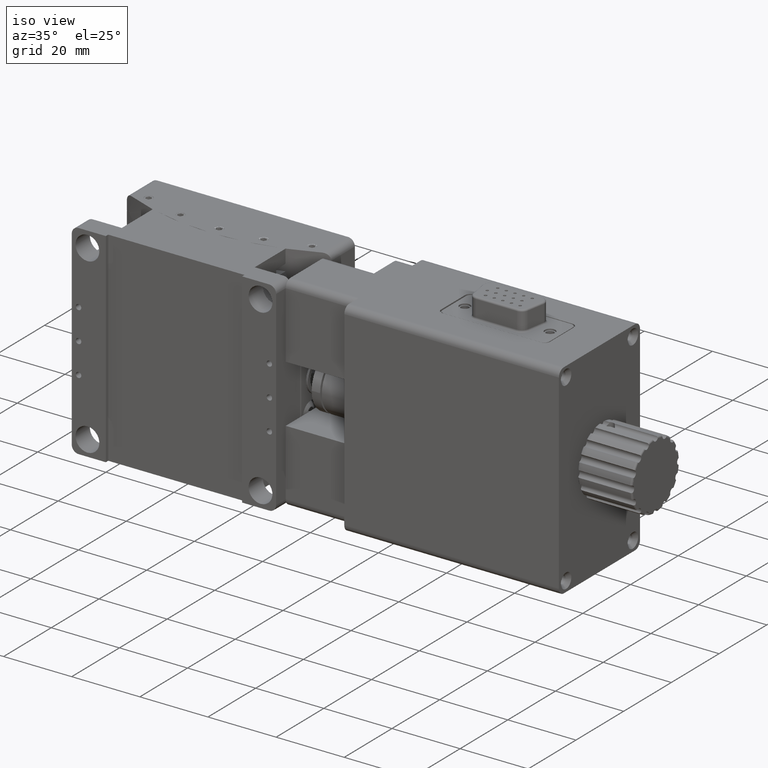
[diagram: clean part render]
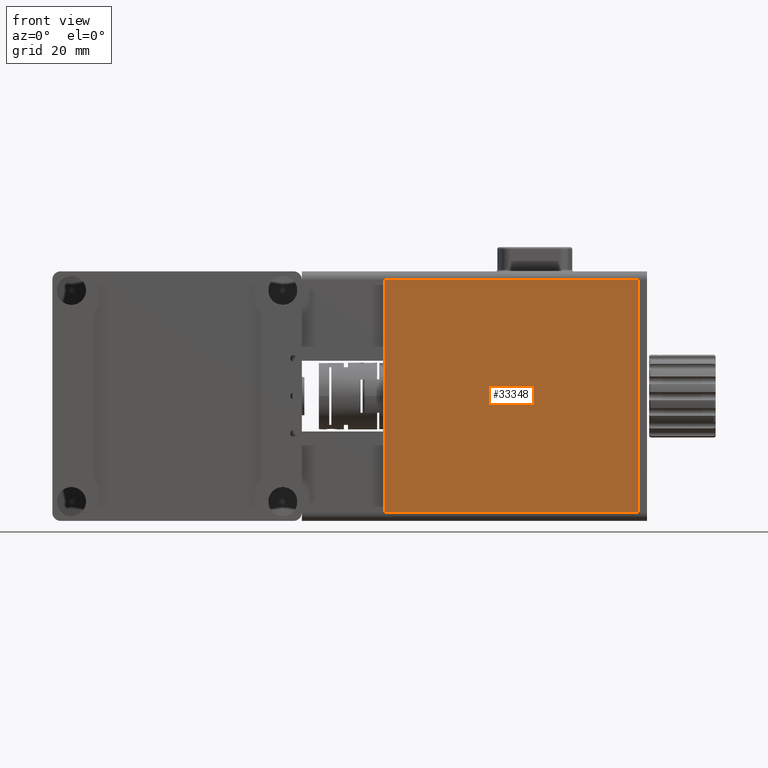
[diagram: tour spotlight — one face highlighted and labeled with its STEP entity id]
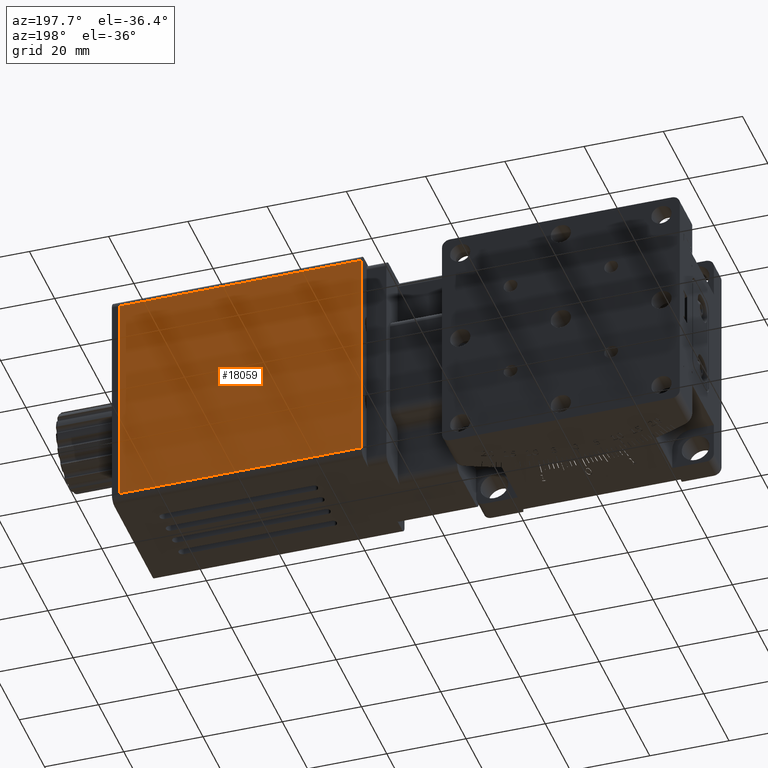
[diagram: tour spotlight — one face highlighted and labeled with its STEP entity id]
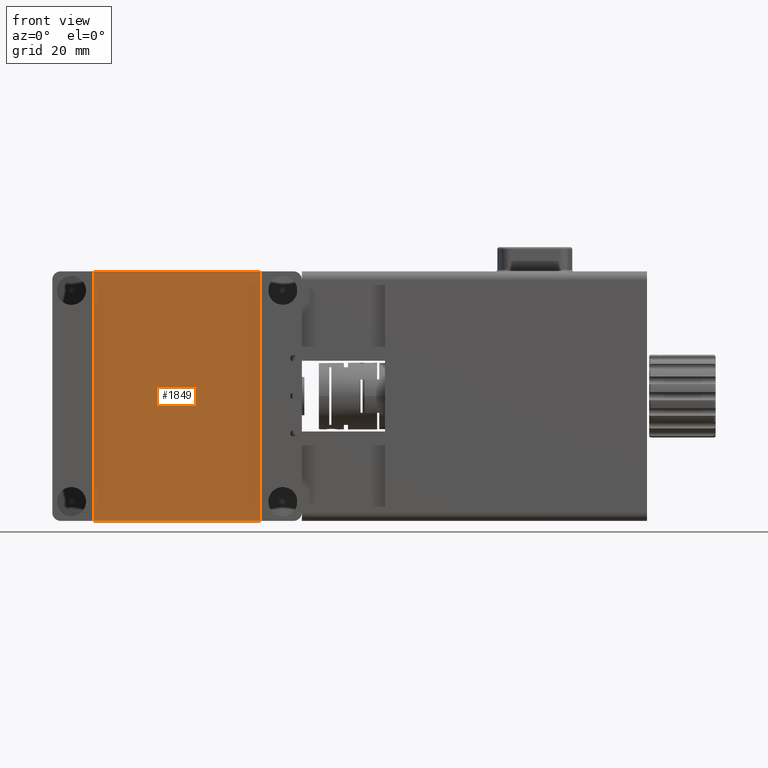
[diagram: tour spotlight — one face highlighted and labeled with its STEP entity id]
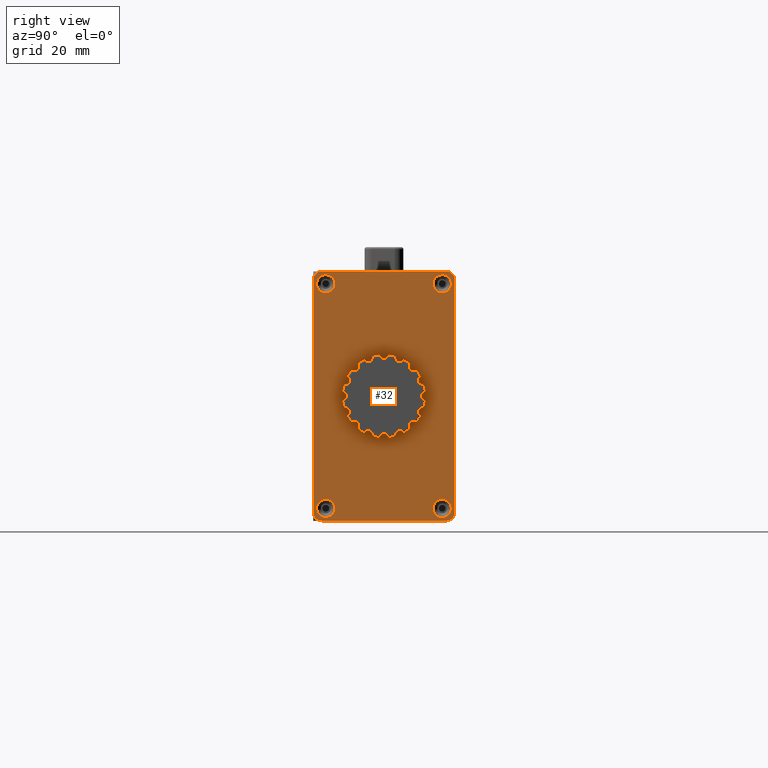
[diagram: tour spotlight — one face highlighted and labeled with its STEP entity id]
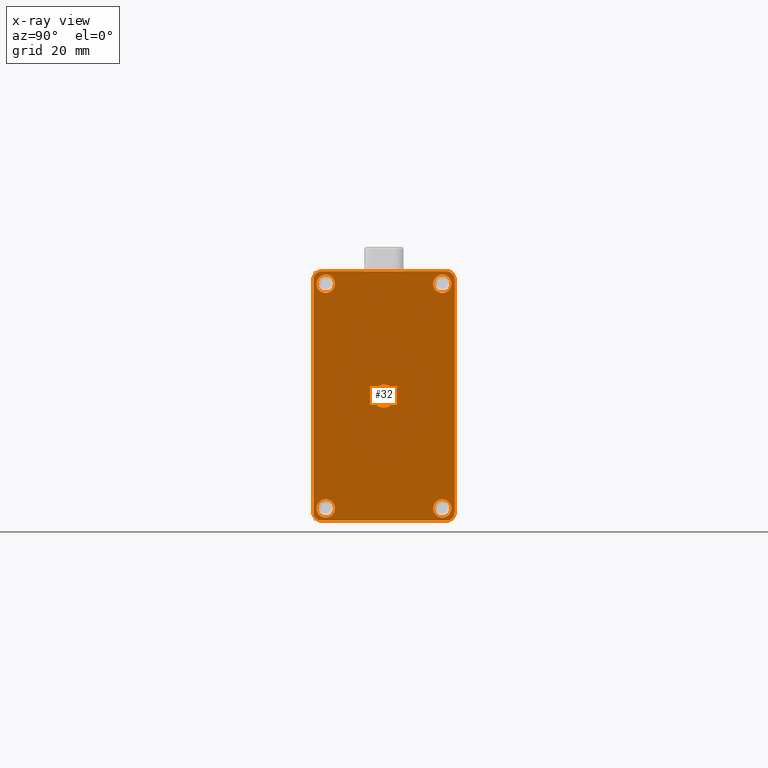
[diagram: x-ray of the same camera — body ghosted, this tour face saturated]
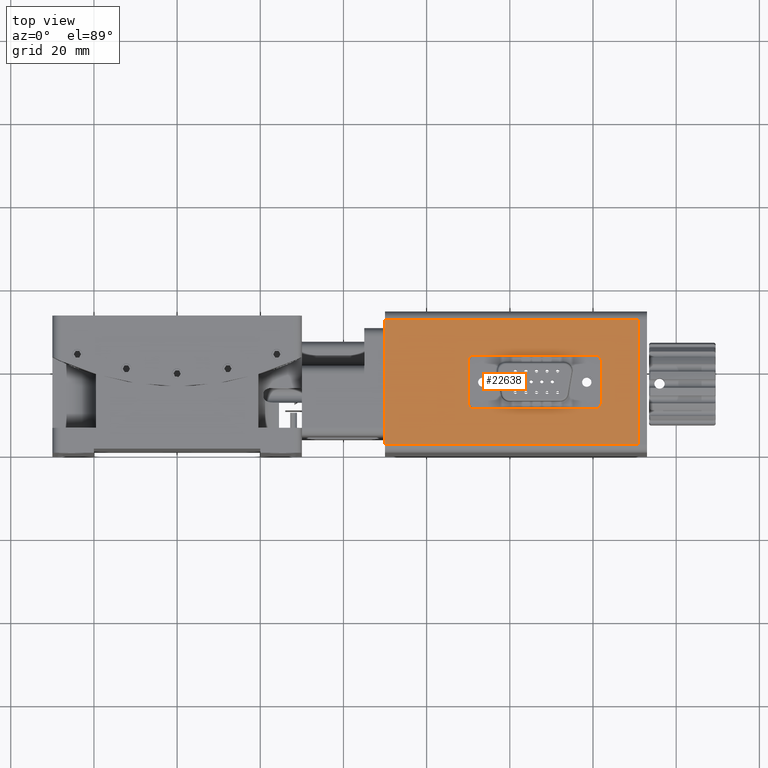
[diagram: tour spotlight — one face highlighted and labeled with its STEP entity id]
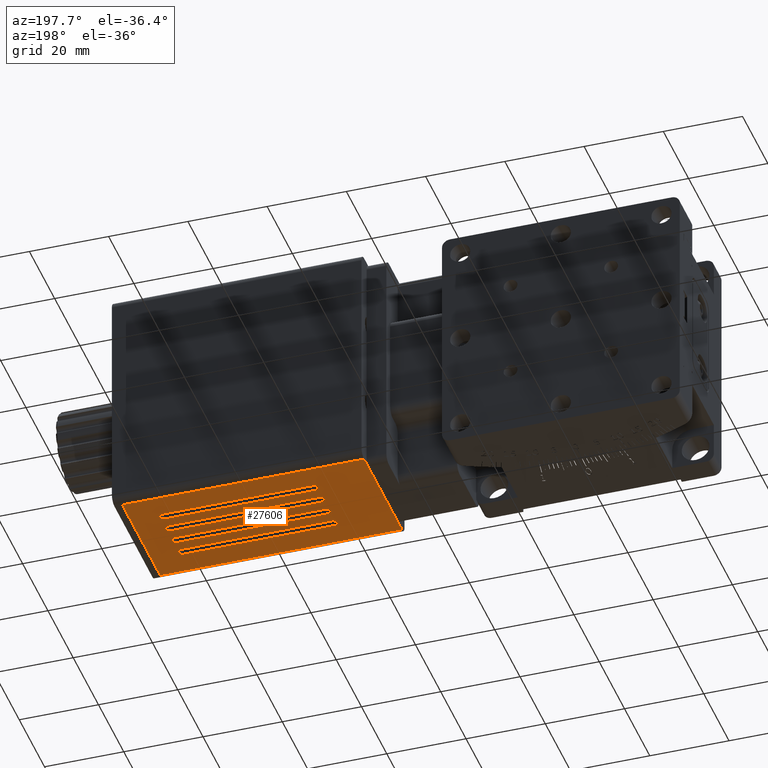
[diagram: tour spotlight — one face highlighted and labeled with its STEP entity id]
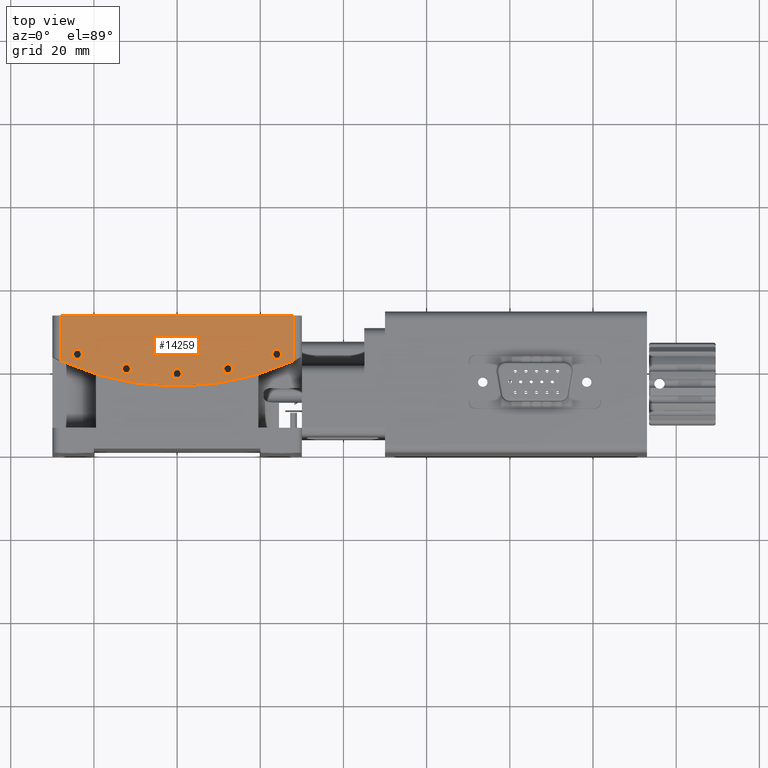
[diagram: tour spotlight — one face highlighted and labeled with its STEP entity id]
A machine part: a face-by-face anatomy tour. The part has 731 B-rep faces; the first image is the clean iso view, then the 7 largest visible faces are spotlighted one at a time (largest first), each with its STEP entity span.

Face 1 — front view, entity #33348. In plain terms, the highlighted planar face has unit normal (0, -1, -0).
Definition (entity closure, byte-faithful):
#2283 = DIRECTION ( 'NONE',  ( 1.000000000000000000, 0.0000000000000000000, 0.0000000000000000000 ) ) ;
#2303 = VECTOR ( 'NONE', #21864, 1000.000000000000000 ) ;
#5192 = VERTEX_POINT ( 'NONE', #9577 ) ;
#5744 = DIRECTION ( 'NONE',  ( 0.0000000000000000000, 1.156482317317871500E-016, -1.000000000000000000 ) ) ;
#7251 = CARTESIAN_POINT ( 'NONE',  ( 110.9999999999999900, 6.938893903907228400E-015, -28.00000000000000700 ) ) ;
#7290 = VECTOR ( 'NONE', #5744, 1000.000000000000000 ) ;
#7643 = DIRECTION ( 'NONE',  ( 0.0000000000000000000, -1.000000000000000000, -1.156482317317871500E-016 ) ) ;
#7887 = PLANE ( 'NONE',  #31088 ) ;
#9088 = LINE ( 'NONE', #37362, #7290 ) ;
#9577 = CARTESIAN_POINT ( 'NONE',  ( 50.00000000000000000, 6.938893903907228400E-015, -28.00000000000000700 ) ) ;
#11126 = LINE ( 'NONE', #16843, #15687 ) ;
#11204 = ORIENTED_EDGE ( 'NONE', *, *, #29680, .T. ) ;
#12536 = EDGE_CURVE ( 'NONE', #18785, #13039, #9088, .T. ) ;
#12779 = EDGE_CURVE ( 'NONE', #31756, #5192, #32606, .T. ) ;
#13039 = VERTEX_POINT ( 'NONE', #7251 ) ;
#13634 = ORIENTED_EDGE ( 'NONE', *, *, #29828, .T. ) ;
#13707 = DIRECTION ( 'NONE',  ( 0.0000000000000000000, 1.156482317317871500E-016, -1.000000000000000000 ) ) ;
#15420 = ORIENTED_EDGE ( 'NONE', *, *, #12779, .T. ) ;
#15687 = VECTOR ( 'NONE', #2283, 1000.000000000000000 ) ;
#16843 = CARTESIAN_POINT ( 'NONE',  ( 50.00000000000000000, 6.938893903907228400E-015, -28.00000000000000700 ) ) ;
#18785 = VERTEX_POINT ( 'NONE', #31765 ) ;
#19655 = CARTESIAN_POINT ( 'NONE',  ( 50.00000000000000000, 6.938893903907228400E-015, -30.00000000000001100 ) ) ;
#19924 = ORIENTED_EDGE ( 'NONE', *, *, #12536, .F. ) ;
#21864 = DIRECTION ( 'NONE',  ( -0.0000000000000000000, 1.156482317317871500E-016, -1.000000000000000000 ) ) ;
#22995 = CARTESIAN_POINT ( 'NONE',  ( 50.00000000000000000, 0.0000000000000000000, 27.99999999999998600 ) ) ;
#25184 = LINE ( 'NONE', #33408, #31029 ) ;
#26971 = EDGE_LOOP ( 'NONE', ( #15420, #13634, #19924, #11204 ) ) ;
#27458 = CARTESIAN_POINT ( 'NONE',  ( 50.00000000000000000, 6.938893903907228400E-015, -30.00000000000001100 ) ) ;
#29680 = EDGE_CURVE ( 'NONE', #18785, #31756, #25184, .T. ) ;
#29828 = EDGE_CURVE ( 'NONE', #5192, #13039, #11126, .T. ) ;
#30384 = DIRECTION ( 'NONE',  ( -1.000000000000000000, -0.0000000000000000000, -0.0000000000000000000 ) ) ;
#31029 = VECTOR ( 'NONE', #30384, 1000.000000000000000 ) ;
#31088 = AXIS2_PLACEMENT_3D ( 'NONE', #19655, #7643, #13707 ) ;
#31722 = FACE_OUTER_BOUND ( 'NONE', #26971, .T. ) ;
#31756 = VERTEX_POINT ( 'NONE', #22995 ) ;
#31765 = CARTESIAN_POINT ( 'NONE',  ( 110.9999999999999900, 0.0000000000000000000, 27.99999999999998600 ) ) ;
#32606 = LINE ( 'NONE', #27458, #2303 ) ;
#33348 = ADVANCED_FACE ( 'NONE', ( #31722 ), #7887, .T. ) ;
#33408 = CARTESIAN_POINT ( 'NONE',  ( 50.00000000000000000, 0.0000000000000000000, 27.99999999999998600 ) ) ;
#37362 = CARTESIAN_POINT ( 'NONE',  ( 110.9999999999999900, 0.0000000000000000000, 29.99999999999998900 ) ) ;

Face 2 — auxiliary view, entity #18059. In plain terms, the highlighted planar face has unit normal (-0, 1, 0).
Definition (entity closure, byte-faithful):
#704 = CARTESIAN_POINT ( 'NONE',  ( 50.00000000000000000, 34.00000000000000000, 27.99999999999998600 ) ) ;
#1784 = CARTESIAN_POINT ( 'NONE',  ( 110.9999999999999900, 34.00000000000000000, -30.00000000000001100 ) ) ;
#1857 = VECTOR ( 'NONE', #27819, 1000.000000000000000 ) ;
#2005 = CARTESIAN_POINT ( 'NONE',  ( 50.00000000000000000, 34.00000000000000000, 27.99999999999998600 ) ) ;
#2613 = ORIENTED_EDGE ( 'NONE', *, *, #32507, .T. ) ;
#2958 = CARTESIAN_POINT ( 'NONE',  ( 50.00000000000000000, 34.00000000000000000, -28.00000000000000700 ) ) ;
#5163 = PLANE ( 'NONE',  #27383 ) ;
#6980 = VERTEX_POINT ( 'NONE', #704 ) ;
#7838 = CARTESIAN_POINT ( 'NONE',  ( 50.00000000000000000, 34.00000000000000000, -30.00000000000001100 ) ) ;
#9652 = EDGE_LOOP ( 'NONE', ( #20852, #30624, #2613, #35744 ) ) ;
#10461 = VECTOR ( 'NONE', #14873, 1000.000000000000000 ) ;
#11918 = EDGE_CURVE ( 'NONE', #6980, #28975, #27662, .T. ) ;
#13706 = CARTESIAN_POINT ( 'NONE',  ( 50.00000000000000000, 34.00000000000000000, -30.00000000000001100 ) ) ;
#14873 = DIRECTION ( 'NONE',  ( -1.000000000000000000, -0.0000000000000000000, -0.0000000000000000000 ) ) ;
#16734 = DIRECTION ( 'NONE',  ( 0.0000000000000000000, -1.156482317317871500E-016, 1.000000000000000000 ) ) ;
#17316 = DIRECTION ( 'NONE',  ( 0.0000000000000000000, -1.156482317317871500E-016, 1.000000000000000000 ) ) ;
#17337 = LINE ( 'NONE', #13706, #31784 ) ;
#17638 = VECTOR ( 'NONE', #17316, 1000.000000000000000 ) ;
#18059 = ADVANCED_FACE ( 'NONE', ( #32486 ), #5163, .T. ) ;
#18687 = CARTESIAN_POINT ( 'NONE',  ( 50.00000000000000000, 34.00000000000000000, -28.00000000000000700 ) ) ;
#19355 = DIRECTION ( 'NONE',  ( -0.0000000000000000000, 1.000000000000000000, 1.156482317317871500E-016 ) ) ;
#20852 = ORIENTED_EDGE ( 'NONE', *, *, #26725, .F. ) ;
#21961 = EDGE_CURVE ( 'NONE', #37011, #29223, #33503, .T. ) ;
#22197 = LINE ( 'NONE', #1784, #17638 ) ;
#25525 = DIRECTION ( 'NONE',  ( 0.0000000000000000000, -1.156482317317871500E-016, 1.000000000000000000 ) ) ;
#26725 = EDGE_CURVE ( 'NONE', #37011, #28975, #22197, .T. ) ;
#27383 = AXIS2_PLACEMENT_3D ( 'NONE', #7838, #19355, #25525 ) ;
#27662 = LINE ( 'NONE', #2005, #1857 ) ;
#27819 = DIRECTION ( 'NONE',  ( 1.000000000000000000, 0.0000000000000000000, 0.0000000000000000000 ) ) ;
#28821 = CARTESIAN_POINT ( 'NONE',  ( 110.9999999999999900, 34.00000000000000000, -28.00000000000000700 ) ) ;
#28975 = VERTEX_POINT ( 'NONE', #31688 ) ;
#29223 = VERTEX_POINT ( 'NONE', #18687 ) ;
#30624 = ORIENTED_EDGE ( 'NONE', *, *, #21961, .T. ) ;
#31688 = CARTESIAN_POINT ( 'NONE',  ( 110.9999999999999900, 34.00000000000000000, 27.99999999999998600 ) ) ;
#31784 = VECTOR ( 'NONE', #16734, 1000.000000000000000 ) ;
#32486 = FACE_OUTER_BOUND ( 'NONE', #9652, .T. ) ;
#32507 = EDGE_CURVE ( 'NONE', #29223, #6980, #17337, .T. ) ;
#33503 = LINE ( 'NONE', #2958, #10461 ) ;
#35744 = ORIENTED_EDGE ( 'NONE', *, *, #11918, .T. ) ;
#37011 = VERTEX_POINT ( 'NONE', #28821 ) ;

Face 3 — front view, entity #1849. In plain terms, the highlighted planar face has unit normal (0, -1, 0).
Definition (entity closure, byte-faithful):
#1438 = FACE_OUTER_BOUND ( 'NONE', #12931, .T. ) ;
#1849 = ADVANCED_FACE ( 'NONE', ( #1438 ), #4452, .T. ) ;
#2389 = CARTESIAN_POINT ( 'NONE',  ( 19.99999999999999600, 1.000000000000000000, 30.00000000000000700 ) ) ;
#2670 = DIRECTION ( 'NONE',  ( 0.0000000000000000000, -0.0000000000000000000, -1.000000000000000000 ) ) ;
#2842 = DIRECTION ( 'NONE',  ( 0.0000000000000000000, 0.0000000000000000000, 1.000000000000000000 ) ) ;
#3047 = EDGE_CURVE ( 'NONE', #17706, #29451, #24892, .T. ) ;
#4452 = PLANE ( 'NONE',  #9703 ) ;
#5668 = DIRECTION ( 'NONE',  ( 0.0000000000000000000, 0.0000000000000000000, -1.000000000000000000 ) ) ;
#6368 = VECTOR ( 'NONE', #19657, 1000.000000000000000 ) ;
#6469 = CARTESIAN_POINT ( 'NONE',  ( 19.99999999999999600, 1.000000000000000000, -30.00000000000000700 ) ) ;
#7404 = EDGE_CURVE ( 'NONE', #17706, #16644, #15478, .T. ) ;
#7564 = ORIENTED_EDGE ( 'NONE', *, *, #17246, .F. ) ;
#7739 = CARTESIAN_POINT ( 'NONE',  ( 2.234376572406160400, 1.000000000000000000, 1.329375062896291300 ) ) ;
#7888 = CARTESIAN_POINT ( 'NONE',  ( -30.00000000000000000, 1.000000000000000900, -30.00000000000000000 ) ) ;
#8171 = LINE ( 'NONE', #2389, #19460 ) ;
#9703 = AXIS2_PLACEMENT_3D ( 'NONE', #7739, #11673, #2670 ) ;
#10195 = VERTEX_POINT ( 'NONE', #34248 ) ;
#11673 = DIRECTION ( 'NONE',  ( 0.0000000000000000000, -1.000000000000000000, 0.0000000000000000000 ) ) ;
#12931 = EDGE_LOOP ( 'NONE', ( #36606, #30273, #30304, #7564 ) ) ;
#13414 = CARTESIAN_POINT ( 'NONE',  ( -19.99999999999999600, 1.000000000000000000, -30.00000000000000700 ) ) ;
#15478 = LINE ( 'NONE', #7888, #6368 ) ;
#15515 = CARTESIAN_POINT ( 'NONE',  ( -29.99999999999999600, 1.000000000000000900, 30.00000000000000700 ) ) ;
#16408 = CARTESIAN_POINT ( 'NONE',  ( -19.99999999999999600, 1.000000000000000000, 30.00000000000000700 ) ) ;
#16644 = VERTEX_POINT ( 'NONE', #6469 ) ;
#17246 = EDGE_CURVE ( 'NONE', #10195, #16644, #8171, .T. ) ;
#17423 = CARTESIAN_POINT ( 'NONE',  ( -19.99999999999999600, 1.000000000000000000, -30.00000000000000700 ) ) ;
#17706 = VERTEX_POINT ( 'NONE', #13414 ) ;
#18276 = DIRECTION ( 'NONE',  ( -1.000000000000000000, 0.0000000000000000000, 1.156482317317871500E-016 ) ) ;
#19460 = VECTOR ( 'NONE', #5668, 1000.000000000000000 ) ;
#19657 = DIRECTION ( 'NONE',  ( 1.000000000000000000, 0.0000000000000000000, -0.0000000000000000000 ) ) ;
#24892 = LINE ( 'NONE', #17423, #34349 ) ;
#28731 = VECTOR ( 'NONE', #18276, 1000.000000000000000 ) ;
#29451 = VERTEX_POINT ( 'NONE', #16408 ) ;
#30273 = ORIENTED_EDGE ( 'NONE', *, *, #3047, .F. ) ;
#30304 = ORIENTED_EDGE ( 'NONE', *, *, #7404, .T. ) ;
#34248 = CARTESIAN_POINT ( 'NONE',  ( 19.99999999999999600, 1.000000000000000000, 30.00000000000000700 ) ) ;
#34349 = VECTOR ( 'NONE', #2842, 1000.000000000000000 ) ;
#36460 = LINE ( 'NONE', #15515, #28731 ) ;
#36606 = ORIENTED_EDGE ( 'NONE', *, *, #36823, .T. ) ;
#36823 = EDGE_CURVE ( 'NONE', #10195, #29451, #36460, .T. ) ;

Face 4 — right view, entity #32. An x-ray twin of the same camera follows (body ghosted, this face saturated) — the face is partly hidden behind the body. In plain terms, the highlighted planar face has unit normal (1, 0, -0).
Definition (entity closure, byte-faithful):
#32 = ADVANCED_FACE ( 'NONE', ( #34104, #35920, #14663, #17384, #1540, #22391 ), #31115, .T. ) ;
#48 = ORIENTED_EDGE ( 'NONE', *, *, #16575, .F. ) ;
#720 = CIRCLE ( 'NONE', #9849, 2.750000000000000000 ) ;
#850 = AXIS2_PLACEMENT_3D ( 'NONE', #32590, #15302, #9613 ) ;
#891 = CARTESIAN_POINT ( 'NONE',  ( 112.9999999999999900, 17.00000000000000000, 7.806255641895631900E-015 ) ) ;
#1146 = DIRECTION ( 'NONE',  ( 1.000000000000000000, 0.0000000000000000000, -0.0000000000000000000 ) ) ;
#1333 = EDGE_CURVE ( 'NONE', #12755, #2565, #30413, .T. ) ;
#1540 = FACE_OUTER_BOUND ( 'NONE', #5838, .T. ) ;
#1679 = CARTESIAN_POINT ( 'NONE',  ( 112.9999999999999900, 3.469446951953614200E-015, -27.99999999999999600 ) ) ;
#1756 = ORIENTED_EDGE ( 'NONE', *, *, #8804, .F. ) ;
#1766 = CARTESIAN_POINT ( 'NONE',  ( 112.9999999999999900, 31.00000000000000700, -29.19999999999999600 ) ) ;
#2311 = DIRECTION ( 'NONE',  ( 0.0000000000000000000, 0.0000000000000000000, -1.000000000000000000 ) ) ;
#2399 = CARTESIAN_POINT ( 'NONE',  ( 112.9999999999999900, 31.00000000000000700, 27.00000000000001100 ) ) ;
#2565 = VERTEX_POINT ( 'NONE', #29483 ) ;
#2605 = LINE ( 'NONE', #29152, #12161 ) ;
#2621 = DIRECTION ( 'NONE',  ( 0.0000000000000000000, 0.0000000000000000000, -1.000000000000000000 ) ) ;
#2970 = ORIENTED_EDGE ( 'NONE', *, *, #13532, .F. ) ;
#3204 = ORIENTED_EDGE ( 'NONE', *, *, #33550, .F. ) ;
#3235 = CARTESIAN_POINT ( 'NONE',  ( 112.9999999999999900, 17.00000000000000000, 2.750000000000007500 ) ) ;
#3875 = VERTEX_POINT ( 'NONE', #18131 ) ;
#3883 = DIRECTION ( 'NONE',  ( 0.0000000000000000000, 0.0000000000000000000, -1.000000000000000000 ) ) ;
#4148 = EDGE_LOOP ( 'NONE', ( #31341, #23103 ) ) ;
#4281 = CARTESIAN_POINT ( 'NONE',  ( 112.9999999999999900, 2.999999999999995600, 27.00000000000001100 ) ) ;
#4338 = CARTESIAN_POINT ( 'NONE',  ( 112.9999999999999900, 34.00000000000000000, -29.99999999999999600 ) ) ;
#4468 = VERTEX_POINT ( 'NONE', #24284 ) ;
#5162 = DIRECTION ( 'NONE',  ( 1.000000000000000000, 0.0000000000000000000, -0.0000000000000000000 ) ) ;
#5169 = DIRECTION ( 'NONE',  ( 1.000000000000000000, 0.0000000000000000000, -0.0000000000000000000 ) ) ;
#5571 = DIRECTION ( 'NONE',  ( 1.000000000000000000, -0.0000000000000000000, -0.0000000000000000000 ) ) ;
#5694 = DIRECTION ( 'NONE',  ( 0.0000000000000000000, 0.0000000000000000000, -1.000000000000000000 ) ) ;
#5838 = EDGE_LOOP ( 'NONE', ( #32011, #19611, #26806, #7968, #8005, #18553, #10951, #10266 ) ) ;
#5943 = DIRECTION ( 'NONE',  ( 0.0000000000000000000, 0.0000000000000000000, -1.000000000000000000 ) ) ;
#6428 = CARTESIAN_POINT ( 'NONE',  ( 112.9999999999999900, 32.00000000000000000, 30.00000000000001100 ) ) ;
#6577 = VERTEX_POINT ( 'NONE', #21267 ) ;
#6645 = VERTEX_POINT ( 'NONE', #24916 ) ;
#7526 = AXIS2_PLACEMENT_3D ( 'NONE', #4281, #27435, #26750 ) ;
#7719 = CARTESIAN_POINT ( 'NONE',  ( 112.9999999999999900, 32.00000000000000000, 28.00000000000001100 ) ) ;
#7968 = ORIENTED_EDGE ( 'NONE', *, *, #1333, .T. ) ;
#8005 = ORIENTED_EDGE ( 'NONE', *, *, #22574, .T. ) ;
#8009 = VERTEX_POINT ( 'NONE', #11365 ) ;
#8065 = AXIS2_PLACEMENT_3D ( 'NONE', #20141, #5571, #5694 ) ;
#8227 = EDGE_LOOP ( 'NONE', ( #9159, #8906 ) ) ;
#8804 = EDGE_CURVE ( 'NONE', #33692, #3875, #25997, .T. ) ;
#8906 = ORIENTED_EDGE ( 'NONE', *, *, #14604, .F. ) ;
#8986 = EDGE_CURVE ( 'NONE', #10203, #12755, #29647, .T. ) ;
#9068 = CIRCLE ( 'NONE', #13722, 2.200000000000000600 ) ;
#9109 = CIRCLE ( 'NONE', #33736, 1.999999999999998200 ) ;
#9159 = ORIENTED_EDGE ( 'NONE', *, *, #19332, .F. ) ;
#9613 = DIRECTION ( 'NONE',  ( 0.0000000000000000000, 0.0000000000000000000, -1.000000000000000000 ) ) ;
#9849 = AXIS2_PLACEMENT_3D ( 'NONE', #14564, #11550, #23310 ) ;
#9925 = AXIS2_PLACEMENT_3D ( 'NONE', #30967, #5162, #31200 ) ;
#10203 = VERTEX_POINT ( 'NONE', #19618 ) ;
#10238 = VECTOR ( 'NONE', #32984, 1000.000000000000000 ) ;
#10266 = ORIENTED_EDGE ( 'NONE', *, *, #33864, .T. ) ;
#10449 = EDGE_CURVE ( 'NONE', #14060, #32908, #33629, .T. ) ;
#10531 = EDGE_CURVE ( 'NONE', #3875, #33692, #25037, .T. ) ;
#10951 = ORIENTED_EDGE ( 'NONE', *, *, #22722, .T. ) ;
#11365 = CARTESIAN_POINT ( 'NONE',  ( 112.9999999999999900, -3.469446951953614200E-015, 28.00000000000000000 ) ) ;
#11377 = VERTEX_POINT ( 'NONE', #19494 ) ;
#11546 = VERTEX_POINT ( 'NONE', #6428 ) ;
#11550 = DIRECTION ( 'NONE',  ( 1.000000000000000000, 0.0000000000000000000, 0.0000000000000000000 ) ) ;
#11587 = AXIS2_PLACEMENT_3D ( 'NONE', #26680, #15469, #18366 ) ;
#12161 = VECTOR ( 'NONE', #26631, 1000.000000000000000 ) ;
#12453 = AXIS2_PLACEMENT_3D ( 'NONE', #2399, #22925, #23040 ) ;
#12564 = VERTEX_POINT ( 'NONE', #31551 ) ;
#12748 = CARTESIAN_POINT ( 'NONE',  ( 112.9999999999999900, 2.999999999999995600, -29.19999999999999600 ) ) ;
#12755 = VERTEX_POINT ( 'NONE', #32423 ) ;
#12952 = CARTESIAN_POINT ( 'NONE',  ( 112.9999999999999900, 31.00000000000000700, 24.80000000000000800 ) ) ;
#12982 = CARTESIAN_POINT ( 'NONE',  ( 112.9999999999999900, 2.000000000000003600, -27.99999999999999600 ) ) ;
#13532 = EDGE_CURVE ( 'NONE', #6577, #12564, #9068, .T. ) ;
#13722 = AXIS2_PLACEMENT_3D ( 'NONE', #22510, #23247, #33964 ) ;
#13751 = CARTESIAN_POINT ( 'NONE',  ( 112.9999999999999900, 31.00000000000000700, -24.79999999999999700 ) ) ;
#14060 = VERTEX_POINT ( 'NONE', #13751 ) ;
#14542 = ORIENTED_EDGE ( 'NONE', *, *, #10531, .F. ) ;
#14564 = CARTESIAN_POINT ( 'NONE',  ( 112.9999999999999900, 17.00000000000000000, 7.806255641895631900E-015 ) ) ;
#14604 = EDGE_CURVE ( 'NONE', #11377, #17928, #15812, .T. ) ;
#14663 = FACE_BOUND ( 'NONE', #8227, .T. ) ;
#14814 = CIRCLE ( 'NONE', #7526, 2.200000000000000600 ) ;
#15302 = DIRECTION ( 'NONE',  ( 1.000000000000000000, -0.0000000000000000000, -0.0000000000000000000 ) ) ;
#15426 = CARTESIAN_POINT ( 'NONE',  ( 112.9999999999999900, 1.999999999999996700, 30.00000000000001100 ) ) ;
#15469 = DIRECTION ( 'NONE',  ( 1.000000000000000000, -0.0000000000000000000, -0.0000000000000000000 ) ) ;
#15609 = CARTESIAN_POINT ( 'NONE',  ( 112.9999999999999900, 17.00000000000000000, 7.806255641895631900E-015 ) ) ;
#15647 = EDGE_CURVE ( 'NONE', #17239, #10203, #22531, .T. ) ;
#15812 = CIRCLE ( 'NONE', #8065, 2.200000000000000600 ) ;
#16575 = EDGE_CURVE ( 'NONE', #6645, #33926, #720, .T. ) ;
#17239 = VERTEX_POINT ( 'NONE', #1679 ) ;
#17384 = FACE_BOUND ( 'NONE', #35772, .T. ) ;
#17928 = VERTEX_POINT ( 'NONE', #12748 ) ;
#18037 = AXIS2_PLACEMENT_3D ( 'NONE', #7719, #5169, #36911 ) ;
#18082 = CARTESIAN_POINT ( 'NONE',  ( 112.9999999999999900, 31.00000000000000700, -26.99999999999999600 ) ) ;
#18131 = CARTESIAN_POINT ( 'NONE',  ( 112.9999999999999900, 31.00000000000000700, 29.20000000000001000 ) ) ;
#18260 = AXIS2_PLACEMENT_3D ( 'NONE', #15609, #26416, #5943 ) ;
#18366 = DIRECTION ( 'NONE',  ( 0.0000000000000000000, 0.0000000000000000000, -1.000000000000000000 ) ) ;
#18523 = DIRECTION ( 'NONE',  ( 0.0000000000000000000, 0.0000000000000000000, -1.000000000000000000 ) ) ;
#18553 = ORIENTED_EDGE ( 'NONE', *, *, #34692, .T. ) ;
#18629 = CIRCLE ( 'NONE', #18260, 2.750000000000000000 ) ;
#19248 = AXIS2_PLACEMENT_3D ( 'NONE', #28474, #31264, #2311 ) ;
#19332 = EDGE_CURVE ( 'NONE', #17928, #11377, #27457, .T. ) ;
#19494 = CARTESIAN_POINT ( 'NONE',  ( 112.9999999999999900, 2.999999999999996000, -24.79999999999999700 ) ) ;
#19611 = ORIENTED_EDGE ( 'NONE', *, *, #15647, .T. ) ;
#19618 = CARTESIAN_POINT ( 'NONE',  ( 112.9999999999999900, 2.000000000000003600, -29.99999999999999600 ) ) ;
#19990 = CARTESIAN_POINT ( 'NONE',  ( 112.9999999999999900, 1.999999999999996700, 28.00000000000001400 ) ) ;
#20141 = CARTESIAN_POINT ( 'NONE',  ( 112.9999999999999900, 2.999999999999995600, -26.99999999999999600 ) ) ;
#20418 = DIRECTION ( 'NONE',  ( -0.0000000000000000000, -1.000000000000000000, -0.0000000000000000000 ) ) ;
#21267 = CARTESIAN_POINT ( 'NONE',  ( 112.9999999999999900, 2.999999999999995600, 24.80000000000000800 ) ) ;
#21889 = DIRECTION ( 'NONE',  ( -0.0000000000000000000, 0.0000000000000000000, -1.000000000000000000 ) ) ;
#22184 = LINE ( 'NONE', #34786, #28020 ) ;
#22234 = EDGE_CURVE ( 'NONE', #32908, #14060, #26217, .T. ) ;
#22391 = FACE_BOUND ( 'NONE', #31862, .T. ) ;
#22510 = CARTESIAN_POINT ( 'NONE',  ( 112.9999999999999900, 2.999999999999995600, 27.00000000000001100 ) ) ;
#22531 = CIRCLE ( 'NONE', #22907, 2.000000000000001800 ) ;
#22574 = EDGE_CURVE ( 'NONE', #2565, #4468, #32110, .T. ) ;
#22722 = EDGE_CURVE ( 'NONE', #11546, #34070, #22184, .T. ) ;
#22907 = AXIS2_PLACEMENT_3D ( 'NONE', #12982, #26852, #18523 ) ;
#22925 = DIRECTION ( 'NONE',  ( 1.000000000000000000, -0.0000000000000000000, -0.0000000000000000000 ) ) ;
#23040 = DIRECTION ( 'NONE',  ( 0.0000000000000000000, 0.0000000000000000000, -1.000000000000000000 ) ) ;
#23103 = ORIENTED_EDGE ( 'NONE', *, *, #10449, .F. ) ;
#23247 = DIRECTION ( 'NONE',  ( 1.000000000000000000, -0.0000000000000000000, -0.0000000000000000000 ) ) ;
#23310 = DIRECTION ( 'NONE',  ( 0.0000000000000000000, 0.0000000000000000000, -1.000000000000000000 ) ) ;
#23925 = CARTESIAN_POINT ( 'NONE',  ( 112.9999999999999900, 3.469446951953614200E-015, -29.99999999999999600 ) ) ;
#24284 = CARTESIAN_POINT ( 'NONE',  ( 112.9999999999999900, 34.00000000000000000, 28.00000000000000000 ) ) ;
#24593 = DIRECTION ( 'NONE',  ( 0.0000000000000000000, -1.156482317317871500E-016, 1.000000000000000000 ) ) ;
#24916 = CARTESIAN_POINT ( 'NONE',  ( 112.9999999999999900, 17.00000000000000000, -2.749999999999992000 ) ) ;
#25037 = CIRCLE ( 'NONE', #850, 2.200000000000000600 ) ;
#25997 = CIRCLE ( 'NONE', #12453, 2.200000000000000600 ) ;
#26217 = CIRCLE ( 'NONE', #19248, 2.200000000000000600 ) ;
#26416 = DIRECTION ( 'NONE',  ( 1.000000000000000000, 0.0000000000000000000, 0.0000000000000000000 ) ) ;
#26631 = DIRECTION ( 'NONE',  ( -0.0000000000000000000, 1.156482317317871500E-016, -1.000000000000000000 ) ) ;
#26680 = CARTESIAN_POINT ( 'NONE',  ( 112.9999999999999900, 2.999999999999995600, -26.99999999999999600 ) ) ;
#26750 = DIRECTION ( 'NONE',  ( 0.0000000000000000000, 0.0000000000000000000, -1.000000000000000000 ) ) ;
#26806 = ORIENTED_EDGE ( 'NONE', *, *, #8986, .T. ) ;
#26852 = DIRECTION ( 'NONE',  ( 1.000000000000000000, 0.0000000000000000000, -0.0000000000000000000 ) ) ;
#27435 = DIRECTION ( 'NONE',  ( 1.000000000000000000, -0.0000000000000000000, -0.0000000000000000000 ) ) ;
#27457 = CIRCLE ( 'NONE', #11587, 2.200000000000000600 ) ;
#28020 = VECTOR ( 'NONE', #20418, 1000.000000000000000 ) ;
#28053 = VECTOR ( 'NONE', #24593, 1000.000000000000000 ) ;
#28254 = EDGE_CURVE ( 'NONE', #12564, #6577, #14814, .T. ) ;
#28474 = CARTESIAN_POINT ( 'NONE',  ( 112.9999999999999900, 31.00000000000000700, -26.99999999999999600 ) ) ;
#29152 = CARTESIAN_POINT ( 'NONE',  ( 112.9999999999999900, 3.469446951953614200E-015, -29.99999999999999600 ) ) ;
#29483 = CARTESIAN_POINT ( 'NONE',  ( 112.9999999999999900, 34.00000000000000000, -27.99999999999999600 ) ) ;
#29631 = EDGE_LOOP ( 'NONE', ( #1756, #14542 ) ) ;
#29647 = LINE ( 'NONE', #23925, #10238 ) ;
#29941 = ORIENTED_EDGE ( 'NONE', *, *, #28254, .F. ) ;
#30063 = DIRECTION ( 'NONE',  ( 1.000000000000000000, -0.0000000000000000000, -0.0000000000000000000 ) ) ;
#30413 = CIRCLE ( 'NONE', #9925, 2.000000000000001800 ) ;
#30967 = CARTESIAN_POINT ( 'NONE',  ( 112.9999999999999900, 32.00000000000000700, -27.99999999999999600 ) ) ;
#31115 = PLANE ( 'NONE',  #37455 ) ;
#31200 = DIRECTION ( 'NONE',  ( 0.0000000000000000000, 0.0000000000000000000, -1.000000000000000000 ) ) ;
#31264 = DIRECTION ( 'NONE',  ( 1.000000000000000000, -0.0000000000000000000, -0.0000000000000000000 ) ) ;
#31341 = ORIENTED_EDGE ( 'NONE', *, *, #22234, .F. ) ;
#31551 = CARTESIAN_POINT ( 'NONE',  ( 112.9999999999999900, 2.999999999999996000, 29.20000000000001000 ) ) ;
#31822 = DIRECTION ( 'NONE',  ( 1.000000000000000000, 0.0000000000000000000, -0.0000000000000000000 ) ) ;
#31862 = EDGE_LOOP ( 'NONE', ( #48, #3204 ) ) ;
#32011 = ORIENTED_EDGE ( 'NONE', *, *, #34912, .T. ) ;
#32110 = LINE ( 'NONE', #4338, #28053 ) ;
#32423 = CARTESIAN_POINT ( 'NONE',  ( 112.9999999999999900, 32.00000000000000000, -29.99999999999999600 ) ) ;
#32590 = CARTESIAN_POINT ( 'NONE',  ( 112.9999999999999900, 31.00000000000000700, 27.00000000000001100 ) ) ;
#32908 = VERTEX_POINT ( 'NONE', #1766 ) ;
#32984 = DIRECTION ( 'NONE',  ( 0.0000000000000000000, 1.000000000000000000, 0.0000000000000000000 ) ) ;
#33550 = EDGE_CURVE ( 'NONE', #33926, #6645, #18629, .T. ) ;
#33629 = CIRCLE ( 'NONE', #36470, 2.200000000000000600 ) ;
#33692 = VERTEX_POINT ( 'NONE', #12952 ) ;
#33736 = AXIS2_PLACEMENT_3D ( 'NONE', #19990, #31822, #2621 ) ;
#33830 = CIRCLE ( 'NONE', #18037, 2.000000000000001800 ) ;
#33864 = EDGE_CURVE ( 'NONE', #34070, #8009, #9109, .T. ) ;
#33926 = VERTEX_POINT ( 'NONE', #3235 ) ;
#33964 = DIRECTION ( 'NONE',  ( 0.0000000000000000000, 0.0000000000000000000, -1.000000000000000000 ) ) ;
#34070 = VERTEX_POINT ( 'NONE', #15426 ) ;
#34104 = FACE_BOUND ( 'NONE', #29631, .T. ) ;
#34692 = EDGE_CURVE ( 'NONE', #4468, #11546, #33830, .T. ) ;
#34786 = CARTESIAN_POINT ( 'NONE',  ( 112.9999999999999900, -3.469446951953614200E-015, 30.00000000000001100 ) ) ;
#34912 = EDGE_CURVE ( 'NONE', #8009, #17239, #2605, .T. ) ;
#35772 = EDGE_LOOP ( 'NONE', ( #2970, #29941 ) ) ;
#35920 = FACE_BOUND ( 'NONE', #4148, .T. ) ;
#36470 = AXIS2_PLACEMENT_3D ( 'NONE', #18082, #30063, #3883 ) ;
#36911 = DIRECTION ( 'NONE',  ( 0.0000000000000000000, 0.0000000000000000000, -1.000000000000000000 ) ) ;
#37455 = AXIS2_PLACEMENT_3D ( 'NONE', #891, #1146, #21889 ) ;

Face 5 — top view, entity #22638. In plain terms, the highlighted planar face has unit normal (0, 0, 1).
Definition (entity closure, byte-faithful):
#259 = CARTESIAN_POINT ( 'NONE',  ( 110.9999999999999900, 32.00000000000000000, 29.99999999999998900 ) ) ;
#983 = LINE ( 'NONE', #36173, #3185 ) ;
#1251 = EDGE_LOOP ( 'NONE', ( #8868, #19389, #20840, #13562, #22921, #9346, #15969, #25651 ) ) ;
#1693 = CARTESIAN_POINT ( 'NONE',  ( 50.00000000000000000, 0.0000000000000000000, 29.99999999999998900 ) ) ;
#2189 = CARTESIAN_POINT ( 'NONE',  ( 100.4999999999999900, 22.00000000000000400, 29.99999999999998900 ) ) ;
#3185 = VECTOR ( 'NONE', #27583, 1000.000000000000000 ) ;
#3549 = CARTESIAN_POINT ( 'NONE',  ( 100.4999999999999900, 23.50000000000000000, 29.99999999999998900 ) ) ;
#3584 = AXIS2_PLACEMENT_3D ( 'NONE', #12538, #12667, #12919 ) ;
#4269 = VECTOR ( 'NONE', #20186, 1000.000000000000000 ) ;
#4300 = DIRECTION ( 'NONE',  ( 0.0000000000000000000, 0.0000000000000000000, 1.000000000000000000 ) ) ;
#4918 = CIRCLE ( 'NONE', #19597, 1.500000000000001300 ) ;
#4933 = AXIS2_PLACEMENT_3D ( 'NONE', #1693, #10694, #29213 ) ;
#5246 = EDGE_CURVE ( 'NONE', #11119, #35354, #6066, .T. ) ;
#5266 = EDGE_CURVE ( 'NONE', #14590, #8684, #31402, .T. ) ;
#5592 = VECTOR ( 'NONE', #12492, 1000.000000000000000 ) ;
#6066 = LINE ( 'NONE', #26874, #5592 ) ;
#6613 = AXIS2_PLACEMENT_3D ( 'NONE', #10272, #4300, #32992 ) ;
#6707 = VECTOR ( 'NONE', #15708, 1000.000000000000000 ) ;
#6735 = DIRECTION ( 'NONE',  ( 1.000000000000000000, 0.0000000000000000000, -0.0000000000000000000 ) ) ;
#6965 = CARTESIAN_POINT ( 'NONE',  ( 50.00000000000000000, 0.0000000000000000000, 29.99999999999998900 ) ) ;
#6977 = CARTESIAN_POINT ( 'NONE',  ( 50.00000000000000000, 2.000000000000000000, 29.99999999999998900 ) ) ;
#7563 = CARTESIAN_POINT ( 'NONE',  ( 110.9999999999999900, 34.00000000000000000, 29.99999999999998900 ) ) ;
#7825 = VECTOR ( 'NONE', #19119, 1000.000000000000000 ) ;
#8012 = CARTESIAN_POINT ( 'NONE',  ( 110.9999999999999900, 1.999999999999998200, 29.99999999999998900 ) ) ;
#8684 = VERTEX_POINT ( 'NONE', #8012 ) ;
#8807 = CIRCLE ( 'NONE', #3584, 1.500000000000001300 ) ;
#8816 = CARTESIAN_POINT ( 'NONE',  ( 100.4999999999999900, 10.50000000000000900, 29.99999999999998900 ) ) ;
#8868 = ORIENTED_EDGE ( 'NONE', *, *, #26277, .F. ) ;
#8988 = LINE ( 'NONE', #11975, #28841 ) ;
#9346 = ORIENTED_EDGE ( 'NONE', *, *, #11245, .F. ) ;
#9482 = CARTESIAN_POINT ( 'NONE',  ( 71.50000000000000000, 12.00000000000000700, 29.99999999999998900 ) ) ;
#10079 = CARTESIAN_POINT ( 'NONE',  ( 50.00000000000000000, 32.00000000000000000, 29.99999999999998900 ) ) ;
#10272 = CARTESIAN_POINT ( 'NONE',  ( 71.50000000000000000, 22.00000000000000400, 29.99999999999998900 ) ) ;
#10694 = DIRECTION ( 'NONE',  ( 0.0000000000000000000, 0.0000000000000000000, 1.000000000000000000 ) ) ;
#10831 = ORIENTED_EDGE ( 'NONE', *, *, #11206, .T. ) ;
#11119 = VERTEX_POINT ( 'NONE', #3549 ) ;
#11206 = EDGE_CURVE ( 'NONE', #19439, #8684, #29042, .T. ) ;
#11245 = EDGE_CURVE ( 'NONE', #23829, #34553, #19106, .T. ) ;
#11476 = DIRECTION ( 'NONE',  ( -0.0000000000000000000, 1.000000000000000000, -0.0000000000000000000 ) ) ;
#11975 = CARTESIAN_POINT ( 'NONE',  ( 102.0000000000000000, 22.00000000000000400, 29.99999999999998900 ) ) ;
#12479 = VERTEX_POINT ( 'NONE', #37002 ) ;
#12492 = DIRECTION ( 'NONE',  ( -1.000000000000000000, 0.0000000000000000000, 0.0000000000000000000 ) ) ;
#12538 = CARTESIAN_POINT ( 'NONE',  ( 100.4999999999999900, 12.00000000000000700, 29.99999999999998900 ) ) ;
#12667 = DIRECTION ( 'NONE',  ( 0.0000000000000000000, 0.0000000000000000000, 1.000000000000000000 ) ) ;
#12919 = DIRECTION ( 'NONE',  ( -1.000000000000000000, 0.0000000000000000000, 0.0000000000000000000 ) ) ;
#13558 = CARTESIAN_POINT ( 'NONE',  ( 71.50000000000000000, 10.50000000000000500, 29.99999999999998900 ) ) ;
#13562 = ORIENTED_EDGE ( 'NONE', *, *, #33652, .F. ) ;
#14092 = EDGE_LOOP ( 'NONE', ( #19431, #10831, #35827, #18420 ) ) ;
#14590 = VERTEX_POINT ( 'NONE', #259 ) ;
#15523 = CIRCLE ( 'NONE', #6613, 1.500000000000001300 ) ;
#15708 = DIRECTION ( 'NONE',  ( -0.0000000000000000000, -1.000000000000000000, -0.0000000000000000000 ) ) ;
#15876 = FACE_BOUND ( 'NONE', #1251, .T. ) ;
#15969 = ORIENTED_EDGE ( 'NONE', *, *, #32770, .F. ) ;
#16391 = DIRECTION ( 'NONE',  ( -1.000000000000000000, -0.0000000000000000000, 0.0000000000000000000 ) ) ;
#16872 = DIRECTION ( 'NONE',  ( -1.000000000000000000, 0.0000000000000000000, 0.0000000000000000000 ) ) ;
#17787 = CARTESIAN_POINT ( 'NONE',  ( 69.99999999999998600, 22.00000000000000400, 29.99999999999998900 ) ) ;
#18253 = CARTESIAN_POINT ( 'NONE',  ( 50.00000000000000000, 2.000000000000000000, 29.99999999999998900 ) ) ;
#18420 = ORIENTED_EDGE ( 'NONE', *, *, #22124, .T. ) ;
#19007 = PLANE ( 'NONE',  #4933 ) ;
#19106 = LINE ( 'NONE', #24832, #7825 ) ;
#19119 = DIRECTION ( 'NONE',  ( 0.0000000000000000000, -1.000000000000000000, 0.0000000000000000000 ) ) ;
#19389 = ORIENTED_EDGE ( 'NONE', *, *, #23683, .F. ) ;
#19431 = ORIENTED_EDGE ( 'NONE', *, *, #23427, .T. ) ;
#19439 = VERTEX_POINT ( 'NONE', #6977 ) ;
#19462 = VERTEX_POINT ( 'NONE', #13558 ) ;
#19589 = VECTOR ( 'NONE', #6735, 1000.000000000000000 ) ;
#19597 = AXIS2_PLACEMENT_3D ( 'NONE', #2189, #31266, #16872 ) ;
#20151 = CARTESIAN_POINT ( 'NONE',  ( 102.0000000000000000, 12.00000000000000700, 29.99999999999998900 ) ) ;
#20186 = DIRECTION ( 'NONE',  ( 0.0000000000000000000, -1.000000000000000000, 0.0000000000000000000 ) ) ;
#20499 = EDGE_CURVE ( 'NONE', #23670, #25952, #8807, .T. ) ;
#20840 = ORIENTED_EDGE ( 'NONE', *, *, #20499, .F. ) ;
#21741 = FACE_OUTER_BOUND ( 'NONE', #14092, .T. ) ;
#21834 = CARTESIAN_POINT ( 'NONE',  ( 71.50000000000000000, 23.50000000000000000, 29.99999999999998900 ) ) ;
#22124 = EDGE_CURVE ( 'NONE', #14590, #28565, #36668, .T. ) ;
#22638 = ADVANCED_FACE ( 'NONE', ( #15876, #21741 ), #19007, .T. ) ;
#22921 = ORIENTED_EDGE ( 'NONE', *, *, #34041, .F. ) ;
#23427 = EDGE_CURVE ( 'NONE', #28565, #19439, #36564, .T. ) ;
#23670 = VERTEX_POINT ( 'NONE', #8816 ) ;
#23683 = EDGE_CURVE ( 'NONE', #25952, #12479, #8988, .T. ) ;
#23829 = VERTEX_POINT ( 'NONE', #17787 ) ;
#24029 = VECTOR ( 'NONE', #16391, 1000.000000000000000 ) ;
#24832 = CARTESIAN_POINT ( 'NONE',  ( 69.99999999999998600, 22.00000000000000400, 29.99999999999998900 ) ) ;
#25651 = ORIENTED_EDGE ( 'NONE', *, *, #5246, .F. ) ;
#25952 = VERTEX_POINT ( 'NONE', #20151 ) ;
#26277 = EDGE_CURVE ( 'NONE', #12479, #11119, #4918, .T. ) ;
#26874 = CARTESIAN_POINT ( 'NONE',  ( 100.4999999999999900, 23.50000000000000000, 29.99999999999998900 ) ) ;
#26905 = DIRECTION ( 'NONE',  ( 0.0000000000000000000, 0.0000000000000000000, 1.000000000000000000 ) ) ;
#27583 = DIRECTION ( 'NONE',  ( 1.000000000000000000, -0.0000000000000000000, -0.0000000000000000000 ) ) ;
#27842 = CARTESIAN_POINT ( 'NONE',  ( 50.00000000000000000, 32.00000000000000000, 29.99999999999998900 ) ) ;
#28565 = VERTEX_POINT ( 'NONE', #27842 ) ;
#28841 = VECTOR ( 'NONE', #11476, 1000.000000000000000 ) ;
#29042 = LINE ( 'NONE', #18253, #19589 ) ;
#29213 = DIRECTION ( 'NONE',  ( 1.000000000000000000, 0.0000000000000000000, -0.0000000000000000000 ) ) ;
#30795 = CIRCLE ( 'NONE', #34014, 1.500000000000001300 ) ;
#31266 = DIRECTION ( 'NONE',  ( 0.0000000000000000000, 0.0000000000000000000, 1.000000000000000000 ) ) ;
#31402 = LINE ( 'NONE', #7563, #4269 ) ;
#32502 = CARTESIAN_POINT ( 'NONE',  ( 69.99999999999998600, 12.00000000000000700, 29.99999999999998900 ) ) ;
#32770 = EDGE_CURVE ( 'NONE', #35354, #23829, #15523, .T. ) ;
#32855 = DIRECTION ( 'NONE',  ( -1.000000000000000000, 0.0000000000000000000, 0.0000000000000000000 ) ) ;
#32992 = DIRECTION ( 'NONE',  ( 1.000000000000000000, 0.0000000000000000000, 0.0000000000000000000 ) ) ;
#33652 = EDGE_CURVE ( 'NONE', #19462, #23670, #983, .T. ) ;
#34014 = AXIS2_PLACEMENT_3D ( 'NONE', #9482, #26905, #32855 ) ;
#34041 = EDGE_CURVE ( 'NONE', #34553, #19462, #30795, .T. ) ;
#34553 = VERTEX_POINT ( 'NONE', #32502 ) ;
#35354 = VERTEX_POINT ( 'NONE', #21834 ) ;
#35827 = ORIENTED_EDGE ( 'NONE', *, *, #5266, .F. ) ;
#36173 = CARTESIAN_POINT ( 'NONE',  ( 100.4999999999999900, 10.50000000000000900, 29.99999999999998900 ) ) ;
#36564 = LINE ( 'NONE', #6965, #6707 ) ;
#36668 = LINE ( 'NONE', #10079, #24029 ) ;
#37002 = CARTESIAN_POINT ( 'NONE',  ( 102.0000000000000000, 22.00000000000000400, 29.99999999999998900 ) ) ;

Face 6 — auxiliary view, entity #27606. In plain terms, the highlighted planar face has unit normal (0, 0, -1).
Definition (entity closure, byte-faithful):
#46 = DIRECTION ( 'NONE',  ( -1.000000000000000000, 0.0000000000000000000, -0.0000000000000000000 ) ) ;
#130 = VERTEX_POINT ( 'NONE', #33452 ) ;
#169 = DIRECTION ( 'NONE',  ( -1.000000000000000000, 0.0000000000000000000, 0.0000000000000000000 ) ) ;
#343 = CIRCLE ( 'NONE', #5432, 1.000000000000000900 ) ;
#445 = DIRECTION ( 'NONE',  ( -1.000000000000000000, 0.0000000000000000000, 0.0000000000000000000 ) ) ;
#458 = AXIS2_PLACEMENT_3D ( 'NONE', #28559, #34502, #25573 ) ;
#929 = AXIS2_PLACEMENT_3D ( 'NONE', #14156, #17193, #17312 ) ;
#1009 = VERTEX_POINT ( 'NONE', #14210 ) ;
#1209 = CARTESIAN_POINT ( 'NONE',  ( 65.00000000000000000, 14.50000000000000500, -30.00000000000001100 ) ) ;
#1681 = EDGE_CURVE ( 'NONE', #18617, #25586, #3684, .T. ) ;
#2057 = EDGE_CURVE ( 'NONE', #18572, #26890, #14084, .T. ) ;
#2083 = EDGE_CURVE ( 'NONE', #33762, #9625, #2317, .T. ) ;
#2124 = VERTEX_POINT ( 'NONE', #17162 ) ;
#2317 = LINE ( 'NONE', #11351, #10946 ) ;
#2438 = EDGE_CURVE ( 'NONE', #7062, #23669, #16352, .T. ) ;
#2454 = LINE ( 'NONE', #24115, #31422 ) ;
#2586 = ORIENTED_EDGE ( 'NONE', *, *, #36126, .F. ) ;
#2772 = ORIENTED_EDGE ( 'NONE', *, *, #17549, .F. ) ;
#2993 = AXIS2_PLACEMENT_3D ( 'NONE', #3715, #32555, #445 ) ;
#3287 = CARTESIAN_POINT ( 'NONE',  ( 103.0000000000000000, 15.50000000000000500, -30.00000000000001100 ) ) ;
#3418 = LINE ( 'NONE', #34004, #24745 ) ;
#3646 = DIRECTION ( 'NONE',  ( -1.000000000000000000, 2.282530889443167700E-017, 0.0000000000000000000 ) ) ;
#3654 = EDGE_LOOP ( 'NONE', ( #15227, #7168, #30415, #27685, #15285 ) ) ;
#3684 = CIRCLE ( 'NONE', #929, 1.000000000000000900 ) ;
#3703 = DIRECTION ( 'NONE',  ( -1.000000000000000000, 0.0000000000000000000, 0.0000000000000000000 ) ) ;
#3715 = CARTESIAN_POINT ( 'NONE',  ( 103.0000000000000000, 14.50000000000000400, -30.00000000000001100 ) ) ;
#3796 = EDGE_CURVE ( 'NONE', #9262, #130, #30541, .T. ) ;
#3898 = LINE ( 'NONE', #31208, #9818 ) ;
#3903 = ORIENTED_EDGE ( 'NONE', *, *, #30241, .F. ) ;
#4143 = EDGE_LOOP ( 'NONE', ( #4208, #25174, #32403, #37476 ) ) ;
#4208 = ORIENTED_EDGE ( 'NONE', *, *, #9452, .F. ) ;
#4320 = VERTEX_POINT ( 'NONE', #23648 ) ;
#4620 = DIRECTION ( 'NONE',  ( 0.0000000000000000000, 0.0000000000000000000, -1.000000000000000000 ) ) ;
#4755 = LINE ( 'NONE', #9390, #35513 ) ;
#4891 = ORIENTED_EDGE ( 'NONE', *, *, #22398, .F. ) ;
#5116 = AXIS2_PLACEMENT_3D ( 'NONE', #7845, #34242, #10762 ) ;
#5191 = EDGE_CURVE ( 'NONE', #130, #36436, #37266, .T. ) ;
#5370 = FACE_BOUND ( 'NONE', #3654, .T. ) ;
#5432 = AXIS2_PLACEMENT_3D ( 'NONE', #10357, #30561, #13272 ) ;
#5618 = VECTOR ( 'NONE', #28627, 1000.000000000000000 ) ;
#5716 = AXIS2_PLACEMENT_3D ( 'NONE', #22738, #31781, #20199 ) ;
#5757 = DIRECTION ( 'NONE',  ( -1.000000000000000000, 2.282530889443167700E-017, 0.0000000000000000000 ) ) ;
#5785 = FACE_BOUND ( 'NONE', #25222, .T. ) ;
#5829 = DIRECTION ( 'NONE',  ( 0.0000000000000000000, 0.0000000000000000000, -1.000000000000000000 ) ) ;
#5840 = CARTESIAN_POINT ( 'NONE',  ( 65.00000000000000000, 9.500000000000008900, -30.00000000000001100 ) ) ;
#6200 = CIRCLE ( 'NONE', #458, 1.000000000000000900 ) ;
#6868 = VERTEX_POINT ( 'NONE', #34573 ) ;
#7062 = VERTEX_POINT ( 'NONE', #23610 ) ;
#7168 = ORIENTED_EDGE ( 'NONE', *, *, #5191, .F. ) ;
#7487 = DIRECTION ( 'NONE',  ( 1.000000000000000000, -0.0000000000000000000, -0.0000000000000000000 ) ) ;
#7577 = LINE ( 'NONE', #10748, #16617 ) ;
#7649 = LINE ( 'NONE', #35245, #36591 ) ;
#7845 = CARTESIAN_POINT ( 'NONE',  ( 103.0000000000000000, 19.50000000000000400, -30.00000000000001100 ) ) ;
#7848 = ORIENTED_EDGE ( 'NONE', *, *, #16853, .F. ) ;
#7965 = DIRECTION ( 'NONE',  ( 0.0000000000000000000, 1.000000000000000000, 0.0000000000000000000 ) ) ;
#8111 = CARTESIAN_POINT ( 'NONE',  ( 103.0000000000000000, 8.500000000000005300, -30.00000000000001100 ) ) ;
#8354 = CARTESIAN_POINT ( 'NONE',  ( 103.0000000000000000, 25.50000000000000400, -30.00000000000001100 ) ) ;
#8596 = CIRCLE ( 'NONE', #5116, 1.000000000000000900 ) ;
#9020 = EDGE_CURVE ( 'NONE', #36436, #18572, #4755, .T. ) ;
#9262 = VERTEX_POINT ( 'NONE', #16412 ) ;
#9390 = CARTESIAN_POINT ( 'NONE',  ( 103.0000000000000000, 13.50000000000000500, -30.00000000000001100 ) ) ;
#9452 = EDGE_CURVE ( 'NONE', #32169, #24666, #2454, .T. ) ;
#9472 = CARTESIAN_POINT ( 'NONE',  ( 65.00000000000000000, 24.50000000000000700, -30.00000000000001100 ) ) ;
#9566 = AXIS2_PLACEMENT_3D ( 'NONE', #11663, #5829, #31879 ) ;
#9625 = VERTEX_POINT ( 'NONE', #13128 ) ;
#9690 = CARTESIAN_POINT ( 'NONE',  ( 65.00000000000000000, 18.50000000000000700, -30.00000000000001100 ) ) ;
#9818 = VECTOR ( 'NONE', #28653, 1000.000000000000000 ) ;
#9905 = ORIENTED_EDGE ( 'NONE', *, *, #2083, .F. ) ;
#10357 = CARTESIAN_POINT ( 'NONE',  ( 103.0000000000000000, 24.50000000000000400, -30.00000000000001100 ) ) ;
#10429 = CIRCLE ( 'NONE', #9566, 1.000000000000000900 ) ;
#10748 = CARTESIAN_POINT ( 'NONE',  ( 50.00000000000000000, 6.938893903907228400E-015, -30.00000000000001100 ) ) ;
#10762 = DIRECTION ( 'NONE',  ( -1.000000000000000000, 0.0000000000000000000, 0.0000000000000000000 ) ) ;
#10946 = VECTOR ( 'NONE', #5757, 1000.000000000000000 ) ;
#11237 = CARTESIAN_POINT ( 'NONE',  ( 65.00000000000000000, 14.50000000000000500, -30.00000000000001100 ) ) ;
#11323 = PLANE ( 'NONE',  #17417 ) ;
#11351 = CARTESIAN_POINT ( 'NONE',  ( 103.0000000000000000, 8.500000000000005300, -30.00000000000001100 ) ) ;
#11360 = LINE ( 'NONE', #15988, #18151 ) ;
#11559 = DIRECTION ( 'NONE',  ( 0.0000000000000000000, 0.0000000000000000000, -1.000000000000000000 ) ) ;
#11663 = CARTESIAN_POINT ( 'NONE',  ( 65.00000000000000000, 19.50000000000000700, -30.00000000000001100 ) ) ;
#12992 = EDGE_CURVE ( 'NONE', #32169, #20332, #11360, .T. ) ;
#13116 = FACE_OUTER_BOUND ( 'NONE', #4143, .T. ) ;
#13128 = CARTESIAN_POINT ( 'NONE',  ( 65.00000000000000000, 8.500000000000007100, -30.00000000000001100 ) ) ;
#13270 = CARTESIAN_POINT ( 'NONE',  ( 65.00000000000000000, 13.50000000000000500, -30.00000000000001100 ) ) ;
#13272 = DIRECTION ( 'NONE',  ( -1.000000000000000000, 0.0000000000000000000, 0.0000000000000000000 ) ) ;
#13716 = LINE ( 'NONE', #28833, #35409 ) ;
#14084 = CIRCLE ( 'NONE', #19380, 1.000000000000000900 ) ;
#14156 = CARTESIAN_POINT ( 'NONE',  ( 65.00000000000000000, 24.50000000000000700, -30.00000000000001100 ) ) ;
#14210 = CARTESIAN_POINT ( 'NONE',  ( 103.0000000000000000, 20.50000000000000400, -30.00000000000001100 ) ) ;
#14238 = VECTOR ( 'NONE', #32251, 1000.000000000000000 ) ;
#14714 = DIRECTION ( 'NONE',  ( 0.0000000000000000000, 0.0000000000000000000, -1.000000000000000000 ) ) ;
#14792 = CARTESIAN_POINT ( 'NONE',  ( 64.00000000000000000, 14.50000000000000500, -30.00000000000001100 ) ) ;
#14856 = VERTEX_POINT ( 'NONE', #8354 ) ;
#14882 = FACE_BOUND ( 'NONE', #16812, .T. ) ;
#15090 = DIRECTION ( 'NONE',  ( -1.000000000000000000, 0.0000000000000000000, 0.0000000000000000000 ) ) ;
#15227 = ORIENTED_EDGE ( 'NONE', *, *, #9020, .F. ) ;
#15285 = ORIENTED_EDGE ( 'NONE', *, *, #2057, .F. ) ;
#15988 = CARTESIAN_POINT ( 'NONE',  ( 50.00000000000000000, 2.000000000000007100, -30.00000000000001100 ) ) ;
#15989 = CIRCLE ( 'NONE', #31303, 1.000000000000000900 ) ;
#16352 = CIRCLE ( 'NONE', #22055, 1.000000000000000900 ) ;
#16412 = CARTESIAN_POINT ( 'NONE',  ( 65.00000000000000000, 15.50000000000000500, -30.00000000000001100 ) ) ;
#16617 = VECTOR ( 'NONE', #7965, 1000.000000000000000 ) ;
#16812 = EDGE_LOOP ( 'NONE', ( #34591, #19587, #7848, #29947, #33761 ) ) ;
#16819 = ORIENTED_EDGE ( 'NONE', *, *, #28624, .F. ) ;
#16853 = EDGE_CURVE ( 'NONE', #31501, #14856, #3418, .T. ) ;
#17162 = CARTESIAN_POINT ( 'NONE',  ( 64.00000000000000000, 19.50000000000000700, -30.00000000000001100 ) ) ;
#17193 = DIRECTION ( 'NONE',  ( 0.0000000000000000000, 0.0000000000000000000, -1.000000000000000000 ) ) ;
#17312 = DIRECTION ( 'NONE',  ( -1.000000000000000000, 0.0000000000000000000, 0.0000000000000000000 ) ) ;
#17417 = AXIS2_PLACEMENT_3D ( 'NONE', #37341, #11559, #46 ) ;
#17549 = EDGE_CURVE ( 'NONE', #4320, #36824, #7649, .T. ) ;
#17597 = ORIENTED_EDGE ( 'NONE', *, *, #34850, .F. ) ;
#18151 = VECTOR ( 'NONE', #27707, 1000.000000000000000 ) ;
#18180 = CIRCLE ( 'NONE', #5716, 1.000000000000000900 ) ;
#18315 = VERTEX_POINT ( 'NONE', #29147 ) ;
#18572 = VERTEX_POINT ( 'NONE', #13270 ) ;
#18617 = VERTEX_POINT ( 'NONE', #33331 ) ;
#18792 = DIRECTION ( 'NONE',  ( 0.0000000000000000000, 1.000000000000000000, 0.0000000000000000000 ) ) ;
#18874 = CIRCLE ( 'NONE', #35281, 1.000000000000000900 ) ;
#18941 = LINE ( 'NONE', #35781, #19861 ) ;
#19380 = AXIS2_PLACEMENT_3D ( 'NONE', #11237, #23106, #25851 ) ;
#19390 = CARTESIAN_POINT ( 'NONE',  ( 110.9999999999999900, 32.00000000000000700, -30.00000000000001100 ) ) ;
#19587 = ORIENTED_EDGE ( 'NONE', *, *, #24061, .F. ) ;
#19861 = VECTOR ( 'NONE', #21903, 1000.000000000000000 ) ;
#20120 = VERTEX_POINT ( 'NONE', #26713 ) ;
#20199 = DIRECTION ( 'NONE',  ( -1.000000000000000000, 0.0000000000000000000, 0.0000000000000000000 ) ) ;
#20332 = VERTEX_POINT ( 'NONE', #29173 ) ;
#20776 = EDGE_CURVE ( 'NONE', #23669, #18315, #29122, .T. ) ;
#21069 = DIRECTION ( 'NONE',  ( 0.0000000000000000000, 0.0000000000000000000, -1.000000000000000000 ) ) ;
#21903 = DIRECTION ( 'NONE',  ( -1.000000000000000000, 2.282530889443167700E-017, 0.0000000000000000000 ) ) ;
#22055 = AXIS2_PLACEMENT_3D ( 'NONE', #5840, #14714, #15090 ) ;
#22398 = EDGE_CURVE ( 'NONE', #2124, #6868, #10429, .T. ) ;
#22738 = CARTESIAN_POINT ( 'NONE',  ( 103.0000000000000000, 9.500000000000005300, -30.00000000000001100 ) ) ;
#23106 = DIRECTION ( 'NONE',  ( 0.0000000000000000000, 0.0000000000000000000, -1.000000000000000000 ) ) ;
#23380 = DIRECTION ( 'NONE',  ( -1.000000000000000000, 0.0000000000000000000, 0.0000000000000000000 ) ) ;
#23490 = FACE_BOUND ( 'NONE', #26249, .T. ) ;
#23610 = CARTESIAN_POINT ( 'NONE',  ( 64.00000000000000000, 9.500000000000008900, -30.00000000000001100 ) ) ;
#23648 = CARTESIAN_POINT ( 'NONE',  ( 103.0000000000000000, 18.50000000000000400, -30.00000000000001100 ) ) ;
#23669 = VERTEX_POINT ( 'NONE', #28158 ) ;
#24061 = EDGE_CURVE ( 'NONE', #14856, #32792, #343, .T. ) ;
#24115 = CARTESIAN_POINT ( 'NONE',  ( 110.9999999999999900, 6.938893903907228400E-015, -30.00000000000001100 ) ) ;
#24265 = ORIENTED_EDGE ( 'NONE', *, *, #25372, .F. ) ;
#24486 = CARTESIAN_POINT ( 'NONE',  ( 64.00000000000000000, 24.50000000000000700, -30.00000000000001100 ) ) ;
#24666 = VERTEX_POINT ( 'NONE', #19390 ) ;
#24745 = VECTOR ( 'NONE', #7487, 1000.000000000000000 ) ;
#25065 = EDGE_CURVE ( 'NONE', #25586, #31501, #18874, .T. ) ;
#25174 = ORIENTED_EDGE ( 'NONE', *, *, #12992, .T. ) ;
#25222 = EDGE_LOOP ( 'NONE', ( #2772, #3903, #2586, #4891, #17597 ) ) ;
#25372 = EDGE_CURVE ( 'NONE', #18315, #33762, #18180, .T. ) ;
#25573 = DIRECTION ( 'NONE',  ( -1.000000000000000000, 0.0000000000000000000, 0.0000000000000000000 ) ) ;
#25586 = VERTEX_POINT ( 'NONE', #24486 ) ;
#25851 = DIRECTION ( 'NONE',  ( -1.000000000000000000, 0.0000000000000000000, 0.0000000000000000000 ) ) ;
#26238 = CARTESIAN_POINT ( 'NONE',  ( 65.00000000000000000, 19.50000000000000700, -30.00000000000001100 ) ) ;
#26249 = EDGE_LOOP ( 'NONE', ( #9905, #24265, #30702, #36653, #16819 ) ) ;
#26713 = CARTESIAN_POINT ( 'NONE',  ( 50.00000000000000000, 32.00000000000000700, -30.00000000000001100 ) ) ;
#26890 = VERTEX_POINT ( 'NONE', #14792 ) ;
#27428 = DIRECTION ( 'NONE',  ( -1.000000000000000000, 2.282530889443167700E-017, 0.0000000000000000000 ) ) ;
#27606 = ADVANCED_FACE ( 'NONE', ( #5785, #14882, #13116, #5370, #23490 ), #11323, .T. ) ;
#27685 = ORIENTED_EDGE ( 'NONE', *, *, #32135, .F. ) ;
#27707 = DIRECTION ( 'NONE',  ( -1.000000000000000000, -0.0000000000000000000, -0.0000000000000000000 ) ) ;
#28158 = CARTESIAN_POINT ( 'NONE',  ( 65.00000000000000000, 10.50000000000000500, -30.00000000000001100 ) ) ;
#28559 = CARTESIAN_POINT ( 'NONE',  ( 65.00000000000000000, 9.500000000000008900, -30.00000000000001100 ) ) ;
#28624 = EDGE_CURVE ( 'NONE', #9625, #7062, #6200, .T. ) ;
#28627 = DIRECTION ( 'NONE',  ( 1.000000000000000000, -0.0000000000000000000, -0.0000000000000000000 ) ) ;
#28653 = DIRECTION ( 'NONE',  ( 1.000000000000000000, -0.0000000000000000000, -0.0000000000000000000 ) ) ;
#28833 = CARTESIAN_POINT ( 'NONE',  ( 50.00000000000000000, 32.00000000000000700, -30.00000000000001100 ) ) ;
#28976 = EDGE_CURVE ( 'NONE', #20332, #20120, #7577, .T. ) ;
#29082 = DIRECTION ( 'NONE',  ( 1.000000000000000000, 0.0000000000000000000, 0.0000000000000000000 ) ) ;
#29122 = LINE ( 'NONE', #37487, #5618 ) ;
#29147 = CARTESIAN_POINT ( 'NONE',  ( 103.0000000000000000, 10.50000000000000500, -30.00000000000001100 ) ) ;
#29173 = CARTESIAN_POINT ( 'NONE',  ( 50.00000000000000000, 2.000000000000007100, -30.00000000000001100 ) ) ;
#29947 = ORIENTED_EDGE ( 'NONE', *, *, #25065, .F. ) ;
#30241 = EDGE_CURVE ( 'NONE', #1009, #4320, #8596, .T. ) ;
#30415 = ORIENTED_EDGE ( 'NONE', *, *, #3796, .F. ) ;
#30541 = LINE ( 'NONE', #3287, #14238 ) ;
#30561 = DIRECTION ( 'NONE',  ( 0.0000000000000000000, 0.0000000000000000000, -1.000000000000000000 ) ) ;
#30702 = ORIENTED_EDGE ( 'NONE', *, *, #20776, .F. ) ;
#31208 = CARTESIAN_POINT ( 'NONE',  ( 103.0000000000000000, 20.50000000000000400, -30.00000000000001100 ) ) ;
#31303 = AXIS2_PLACEMENT_3D ( 'NONE', #1209, #21069, #3703 ) ;
#31422 = VECTOR ( 'NONE', #18792, 1000.000000000000000 ) ;
#31501 = VERTEX_POINT ( 'NONE', #34407 ) ;
#31521 = EDGE_CURVE ( 'NONE', #20120, #24666, #13716, .T. ) ;
#31579 = AXIS2_PLACEMENT_3D ( 'NONE', #26238, #32189, #23380 ) ;
#31781 = DIRECTION ( 'NONE',  ( 0.0000000000000000000, 0.0000000000000000000, -1.000000000000000000 ) ) ;
#31879 = DIRECTION ( 'NONE',  ( -1.000000000000000000, 0.0000000000000000000, 0.0000000000000000000 ) ) ;
#32135 = EDGE_CURVE ( 'NONE', #26890, #9262, #15989, .T. ) ;
#32169 = VERTEX_POINT ( 'NONE', #33037 ) ;
#32189 = DIRECTION ( 'NONE',  ( 0.0000000000000000000, 0.0000000000000000000, -1.000000000000000000 ) ) ;
#32251 = DIRECTION ( 'NONE',  ( 1.000000000000000000, -0.0000000000000000000, -0.0000000000000000000 ) ) ;
#32403 = ORIENTED_EDGE ( 'NONE', *, *, #28976, .T. ) ;
#32555 = DIRECTION ( 'NONE',  ( 0.0000000000000000000, 0.0000000000000000000, -1.000000000000000000 ) ) ;
#32792 = VERTEX_POINT ( 'NONE', #35652 ) ;
#33037 = CARTESIAN_POINT ( 'NONE',  ( 110.9999999999999900, 2.000000000000007100, -30.00000000000001100 ) ) ;
#33331 = CARTESIAN_POINT ( 'NONE',  ( 65.00000000000000000, 23.50000000000000700, -30.00000000000001100 ) ) ;
#33452 = CARTESIAN_POINT ( 'NONE',  ( 103.0000000000000000, 15.50000000000000500, -30.00000000000001100 ) ) ;
#33456 = CARTESIAN_POINT ( 'NONE',  ( 103.0000000000000000, 13.50000000000000500, -30.00000000000001100 ) ) ;
#33761 = ORIENTED_EDGE ( 'NONE', *, *, #1681, .F. ) ;
#33762 = VERTEX_POINT ( 'NONE', #8111 ) ;
#34004 = CARTESIAN_POINT ( 'NONE',  ( 103.0000000000000000, 25.50000000000000400, -30.00000000000001100 ) ) ;
#34242 = DIRECTION ( 'NONE',  ( 0.0000000000000000000, 0.0000000000000000000, -1.000000000000000000 ) ) ;
#34407 = CARTESIAN_POINT ( 'NONE',  ( 65.00000000000000000, 25.50000000000000400, -30.00000000000001100 ) ) ;
#34502 = DIRECTION ( 'NONE',  ( 0.0000000000000000000, 0.0000000000000000000, -1.000000000000000000 ) ) ;
#34573 = CARTESIAN_POINT ( 'NONE',  ( 65.00000000000000000, 20.50000000000000400, -30.00000000000001100 ) ) ;
#34591 = ORIENTED_EDGE ( 'NONE', *, *, #34639, .F. ) ;
#34639 = EDGE_CURVE ( 'NONE', #32792, #18617, #18941, .T. ) ;
#34850 = EDGE_CURVE ( 'NONE', #36824, #2124, #35195, .T. ) ;
#35195 = CIRCLE ( 'NONE', #31579, 1.000000000000000900 ) ;
#35245 = CARTESIAN_POINT ( 'NONE',  ( 103.0000000000000000, 18.50000000000000400, -30.00000000000001100 ) ) ;
#35281 = AXIS2_PLACEMENT_3D ( 'NONE', #9472, #4620, #169 ) ;
#35409 = VECTOR ( 'NONE', #29082, 1000.000000000000000 ) ;
#35513 = VECTOR ( 'NONE', #3646, 1000.000000000000000 ) ;
#35652 = CARTESIAN_POINT ( 'NONE',  ( 103.0000000000000000, 23.50000000000000400, -30.00000000000001100 ) ) ;
#35781 = CARTESIAN_POINT ( 'NONE',  ( 103.0000000000000000, 23.50000000000000400, -30.00000000000001100 ) ) ;
#36126 = EDGE_CURVE ( 'NONE', #6868, #1009, #3898, .T. ) ;
#36436 = VERTEX_POINT ( 'NONE', #33456 ) ;
#36591 = VECTOR ( 'NONE', #27428, 1000.000000000000000 ) ;
#36653 = ORIENTED_EDGE ( 'NONE', *, *, #2438, .F. ) ;
#36824 = VERTEX_POINT ( 'NONE', #9690 ) ;
#37266 = CIRCLE ( 'NONE', #2993, 1.000000000000000900 ) ;
#37341 = CARTESIAN_POINT ( 'NONE',  ( 50.00000000000000000, 6.938893903907228400E-015, -30.00000000000001100 ) ) ;
#37476 = ORIENTED_EDGE ( 'NONE', *, *, #31521, .T. ) ;
#37487 = CARTESIAN_POINT ( 'NONE',  ( 103.0000000000000000, 10.50000000000000500, -30.00000000000001100 ) ) ;

Face 7 — top view, entity #14259. In plain terms, the highlighted planar face has unit normal (0, 0, -1).
Definition (entity closure, byte-faithful):
#288 = AXIS2_PLACEMENT_3D ( 'NONE', #28826, #5814, #11531 ) ;
#1037 = ORIENTED_EDGE ( 'NONE', *, *, #31808, .F. ) ;
#1630 = CARTESIAN_POINT ( 'NONE',  ( -3.694267114440208400E-014, 18.99999999999977300, 30.00000000000000700 ) ) ;
#2138 = DIRECTION ( 'NONE',  ( 1.000000000000000000, 0.0000000000000000000, 0.0000000000000000000 ) ) ;
#2212 = VERTEX_POINT ( 'NONE', #12634 ) ;
#2398 = CIRCLE ( 'NONE', #9126, 1.249999999999988900 ) ;
#2724 = ORIENTED_EDGE ( 'NONE', *, *, #10099, .F. ) ;
#3255 = CIRCLE ( 'NONE', #5386, 1.249999999999988900 ) ;
#3306 = CARTESIAN_POINT ( 'NONE',  ( -12.21177570409891500, 20.17586025934928900, 30.00000000000000700 ) ) ;
#4033 = VERTEX_POINT ( 'NONE', #26959 ) ;
#4425 = ORIENTED_EDGE ( 'NONE', *, *, #15695, .F. ) ;
#4496 = FACE_BOUND ( 'NONE', #37053, .T. ) ;
#4532 = ORIENTED_EDGE ( 'NONE', *, *, #14684, .T. ) ;
#4603 = CARTESIAN_POINT ( 'NONE',  ( 27.99999999999992500, 22.13128882586696000, 30.00000000000001100 ) ) ;
#4623 = CIRCLE ( 'NONE', #34662, 67.00000000000001400 ) ;
#5386 = AXIS2_PLACEMENT_3D ( 'NONE', #1630, #13156, #12370 ) ;
#5395 = FACE_BOUND ( 'NONE', #17687, .T. ) ;
#5541 = DIRECTION ( 'NONE',  ( 1.000000000000000000, 0.0000000000000000000, 0.0000000000000000000 ) ) ;
#5814 = DIRECTION ( 'NONE',  ( 0.0000000000000000000, 0.0000000000000000000, 1.000000000000000000 ) ) ;
#5862 = CARTESIAN_POINT ( 'NONE',  ( -12.21177570409891500, 20.17586025934928900, 30.00000000000000700 ) ) ;
#5897 = EDGE_CURVE ( 'NONE', #19259, #19201, #2398, .T. ) ;
#6358 = VERTEX_POINT ( 'NONE', #35126 ) ;
#6608 = AXIS2_PLACEMENT_3D ( 'NONE', #12472, #30278, #15370 ) ;
#6623 = PLANE ( 'NONE',  #6608 ) ;
#6766 = EDGE_CURVE ( 'NONE', #35654, #35258, #4623, .T. ) ;
#6826 = VERTEX_POINT ( 'NONE', #16311 ) ;
#6910 = CARTESIAN_POINT ( 'NONE',  ( -1.250000000000025800, 18.99999999999977300, 30.00000000000000700 ) ) ;
#6952 = VERTEX_POINT ( 'NONE', #20079 ) ;
#7457 = EDGE_CURVE ( 'NONE', #16536, #16312, #31256, .T. ) ;
#7519 = CARTESIAN_POINT ( 'NONE',  ( 12.21177570409888200, 20.17586025934928200, 30.00000000000000700 ) ) ;
#7561 = CARTESIAN_POINT ( 'NONE',  ( -25.22482197861845100, 23.66023330772539900, 30.00000000000000700 ) ) ;
#9126 = AXIS2_PLACEMENT_3D ( 'NONE', #14781, #12129, #35227 ) ;
#9428 = EDGE_LOOP ( 'NONE', ( #31527, #22915 ) ) ;
#9486 = FACE_OUTER_BOUND ( 'NONE', #28934, .T. ) ;
#9495 = EDGE_LOOP ( 'NONE', ( #20478, #16784 ) ) ;
#9769 = CARTESIAN_POINT ( 'NONE',  ( -23.97482197861846500, 23.66023330772539900, 30.00000000000000700 ) ) ;
#10099 = EDGE_CURVE ( 'NONE', #24089, #18716, #14628, .T. ) ;
#10539 = DIRECTION ( 'NONE',  ( 0.0000000000000000000, 0.0000000000000000000, 1.000000000000000000 ) ) ;
#10696 = DIRECTION ( 'NONE',  ( 0.0000000000000000000, 0.0000000000000000000, 1.000000000000000000 ) ) ;
#10743 = CARTESIAN_POINT ( 'NONE',  ( -2.983724378680108200E-014, 82.99999999999980100, 30.00000000000001100 ) ) ;
#11531 = DIRECTION ( 'NONE',  ( 1.000000000000000000, 0.0000000000000000000, 0.0000000000000000000 ) ) ;
#11941 = DIRECTION ( 'NONE',  ( 0.0000000000000000000, 0.0000000000000000000, 1.000000000000000000 ) ) ;
#12129 = DIRECTION ( 'NONE',  ( 0.0000000000000000000, 0.0000000000000000000, 1.000000000000000000 ) ) ;
#12370 = DIRECTION ( 'NONE',  ( 1.000000000000000000, 0.0000000000000000000, 0.0000000000000000000 ) ) ;
#12440 = ORIENTED_EDGE ( 'NONE', *, *, #6766, .T. ) ;
#12472 = CARTESIAN_POINT ( 'NONE',  ( 29.99999999999996400, 32.99999999999978000, 30.00000000000000700 ) ) ;
#12518 = EDGE_CURVE ( 'NONE', #4033, #6952, #29421, .T. ) ;
#12634 = CARTESIAN_POINT ( 'NONE',  ( 27.99999999999996400, 32.99999999999978000, 30.00000000000000700 ) ) ;
#13025 = CIRCLE ( 'NONE', #28956, 1.249999999999988900 ) ;
#13074 = DIRECTION ( 'NONE',  ( 0.0000000000000000000, 0.0000000000000000000, 1.000000000000000000 ) ) ;
#13156 = DIRECTION ( 'NONE',  ( 0.0000000000000000000, 0.0000000000000000000, 1.000000000000000000 ) ) ;
#14096 = CARTESIAN_POINT ( 'NONE',  ( -22.72482197861847600, 23.66023330772539900, 30.00000000000000700 ) ) ;
#14259 = ADVANCED_FACE ( 'NONE', ( #5395, #26645, #25751, #4496, #9486, #15361 ), #6623, .F. ) ;
#14518 = CARTESIAN_POINT ( 'NONE',  ( 23.97482197861839400, 23.66023330772539200, 30.00000000000000700 ) ) ;
#14628 = CIRCLE ( 'NONE', #17801, 1.249999999999987100 ) ;
#14684 = EDGE_CURVE ( 'NONE', #6358, #35654, #31589, .T. ) ;
#14781 = CARTESIAN_POINT ( 'NONE',  ( 12.21177570409888200, 20.17586025934928200, 30.00000000000000700 ) ) ;
#14808 = LINE ( 'NONE', #37466, #17108 ) ;
#14953 = DIRECTION ( 'NONE',  ( 1.110223024625156300E-016, 1.000000000000000000, -0.0000000000000000000 ) ) ;
#15294 = CARTESIAN_POINT ( 'NONE',  ( 22.72482197861840800, 23.66023330772539200, 30.00000000000000700 ) ) ;
#15361 = FACE_BOUND ( 'NONE', #9495, .T. ) ;
#15370 = DIRECTION ( 'NONE',  ( -1.000000000000000000, 1.110223024625156300E-016, 0.0000000000000000000 ) ) ;
#15574 = EDGE_CURVE ( 'NONE', #6358, #2212, #14808, .T. ) ;
#15695 = EDGE_CURVE ( 'NONE', #19201, #19259, #32465, .T. ) ;
#16311 = CARTESIAN_POINT ( 'NONE',  ( 25.22482197861838300, 23.66023330772539200, 30.00000000000000700 ) ) ;
#16312 = VERTEX_POINT ( 'NONE', #6910 ) ;
#16383 = CIRCLE ( 'NONE', #31783, 1.249999999999987100 ) ;
#16468 = ORIENTED_EDGE ( 'NONE', *, *, #7457, .F. ) ;
#16536 = VERTEX_POINT ( 'NONE', #19540 ) ;
#16647 = EDGE_CURVE ( 'NONE', #35258, #2212, #23373, .T. ) ;
#16784 = ORIENTED_EDGE ( 'NONE', *, *, #33816, .F. ) ;
#17100 = CIRCLE ( 'NONE', #25349, 1.249999999999987100 ) ;
#17108 = VECTOR ( 'NONE', #28854, 1000.000000000000000 ) ;
#17484 = ORIENTED_EDGE ( 'NONE', *, *, #5897, .F. ) ;
#17687 = EDGE_LOOP ( 'NONE', ( #27186, #2724 ) ) ;
#17801 = AXIS2_PLACEMENT_3D ( 'NONE', #33873, #36671, #2138 ) ;
#18233 = DIRECTION ( 'NONE',  ( -1.110223024625156300E-016, -1.000000000000000000, 0.0000000000000000000 ) ) ;
#18716 = VERTEX_POINT ( 'NONE', #14096 ) ;
#19201 = VERTEX_POINT ( 'NONE', #33773 ) ;
#19259 = VERTEX_POINT ( 'NONE', #31499 ) ;
#19540 = CARTESIAN_POINT ( 'NONE',  ( 1.249999999999952000, 18.99999999999977300, 30.00000000000000700 ) ) ;
#20079 = CARTESIAN_POINT ( 'NONE',  ( -10.96177570409892600, 20.17586025934928900, 30.00000000000000700 ) ) ;
#20478 = ORIENTED_EDGE ( 'NONE', *, *, #35352, .F. ) ;
#22915 = ORIENTED_EDGE ( 'NONE', *, *, #12518, .F. ) ;
#23348 = AXIS2_PLACEMENT_3D ( 'NONE', #9769, #13074, #33240 ) ;
#23373 = LINE ( 'NONE', #32763, #28322 ) ;
#24089 = VERTEX_POINT ( 'NONE', #7561 ) ;
#24402 = EDGE_CURVE ( 'NONE', #6952, #4033, #13025, .T. ) ;
#25169 = DIRECTION ( 'NONE',  ( 0.0000000000000000000, 0.0000000000000000000, 1.000000000000000000 ) ) ;
#25245 = DIRECTION ( 'NONE',  ( 1.000000000000000000, 0.0000000000000000000, 0.0000000000000000000 ) ) ;
#25349 = AXIS2_PLACEMENT_3D ( 'NONE', #25475, #10696, #25245 ) ;
#25475 = CARTESIAN_POINT ( 'NONE',  ( 23.97482197861839400, 23.66023330772539200, 30.00000000000000700 ) ) ;
#25665 = ORIENTED_EDGE ( 'NONE', *, *, #16647, .T. ) ;
#25751 = FACE_BOUND ( 'NONE', #36537, .T. ) ;
#25785 = ORIENTED_EDGE ( 'NONE', *, *, #15574, .F. ) ;
#25846 = DIRECTION ( 'NONE',  ( 0.0000000000000000000, 0.0000000000000000000, 1.000000000000000000 ) ) ;
#26645 = FACE_BOUND ( 'NONE', #9428, .T. ) ;
#26959 = CARTESIAN_POINT ( 'NONE',  ( -13.46177570409890500, 20.17586025934928900, 30.00000000000000700 ) ) ;
#27186 = ORIENTED_EDGE ( 'NONE', *, *, #32812, .F. ) ;
#28322 = VECTOR ( 'NONE', #14953, 1000.000000000000000 ) ;
#28673 = AXIS2_PLACEMENT_3D ( 'NONE', #5862, #25846, #34682 ) ;
#28826 = CARTESIAN_POINT ( 'NONE',  ( -3.694267114440208400E-014, 18.99999999999977300, 30.00000000000000700 ) ) ;
#28854 = DIRECTION ( 'NONE',  ( 1.000000000000000000, -1.110223024625156300E-016, 0.0000000000000000000 ) ) ;
#28934 = EDGE_LOOP ( 'NONE', ( #12440, #25665, #25785, #4532 ) ) ;
#28956 = AXIS2_PLACEMENT_3D ( 'NONE', #3306, #11941, #32534 ) ;
#29323 = CARTESIAN_POINT ( 'NONE',  ( -28.00000000000003200, 32.99999999999978000, 30.00000000000000700 ) ) ;
#29421 = CIRCLE ( 'NONE', #28673, 1.249999999999988900 ) ;
#30278 = DIRECTION ( 'NONE',  ( 0.0000000000000000000, 0.0000000000000000000, -1.000000000000000000 ) ) ;
#30573 = VERTEX_POINT ( 'NONE', #15294 ) ;
#31256 = CIRCLE ( 'NONE', #288, 1.249999999999988900 ) ;
#31499 = CARTESIAN_POINT ( 'NONE',  ( 13.46177570409886900, 20.17586025934928200, 30.00000000000000700 ) ) ;
#31527 = ORIENTED_EDGE ( 'NONE', *, *, #24402, .F. ) ;
#31589 = LINE ( 'NONE', #29323, #37036 ) ;
#31783 = AXIS2_PLACEMENT_3D ( 'NONE', #14518, #34251, #5541 ) ;
#31808 = EDGE_CURVE ( 'NONE', #16312, #16536, #3255, .T. ) ;
#32465 = CIRCLE ( 'NONE', #33297, 1.249999999999988900 ) ;
#32534 = DIRECTION ( 'NONE',  ( 1.000000000000000000, 0.0000000000000000000, 0.0000000000000000000 ) ) ;
#32763 = CARTESIAN_POINT ( 'NONE',  ( 27.99999999999996400, 32.99999999999978000, 30.00000000000000700 ) ) ;
#32812 = EDGE_CURVE ( 'NONE', #18716, #24089, #37213, .T. ) ;
#33240 = DIRECTION ( 'NONE',  ( 1.000000000000000000, 0.0000000000000000000, 0.0000000000000000000 ) ) ;
#33297 = AXIS2_PLACEMENT_3D ( 'NONE', #7519, #10539, #33778 ) ;
#33773 = CARTESIAN_POINT ( 'NONE',  ( 10.96177570409889200, 20.17586025934928200, 30.00000000000000700 ) ) ;
#33778 = DIRECTION ( 'NONE',  ( 1.000000000000000000, 0.0000000000000000000, 0.0000000000000000000 ) ) ;
#33816 = EDGE_CURVE ( 'NONE', #30573, #6826, #16383, .T. ) ;
#33873 = CARTESIAN_POINT ( 'NONE',  ( -23.97482197861846500, 23.66023330772539900, 30.00000000000000700 ) ) ;
#34251 = DIRECTION ( 'NONE',  ( 0.0000000000000000000, 0.0000000000000000000, 1.000000000000000000 ) ) ;
#34662 = AXIS2_PLACEMENT_3D ( 'NONE', #10743, #25169, #37017 ) ;
#34682 = DIRECTION ( 'NONE',  ( 1.000000000000000000, 0.0000000000000000000, 0.0000000000000000000 ) ) ;
#35126 = CARTESIAN_POINT ( 'NONE',  ( -28.00000000000003200, 32.99999999999978000, 30.00000000000000700 ) ) ;
#35227 = DIRECTION ( 'NONE',  ( 1.000000000000000000, 0.0000000000000000000, 0.0000000000000000000 ) ) ;
#35258 = VERTEX_POINT ( 'NONE', #4603 ) ;
#35352 = EDGE_CURVE ( 'NONE', #6826, #30573, #17100, .T. ) ;
#35654 = VERTEX_POINT ( 'NONE', #35670 ) ;
#35670 = CARTESIAN_POINT ( 'NONE',  ( -28.00000000000007500, 22.13128882586696700, 30.00000000000001100 ) ) ;
#36537 = EDGE_LOOP ( 'NONE', ( #17484, #4425 ) ) ;
#36671 = DIRECTION ( 'NONE',  ( 0.0000000000000000000, 0.0000000000000000000, 1.000000000000000000 ) ) ;
#37017 = DIRECTION ( 'NONE',  ( 1.000000000000000000, -2.071311613106634900E-016, 0.0000000000000000000 ) ) ;
#37036 = VECTOR ( 'NONE', #18233, 1000.000000000000000 ) ;
#37053 = EDGE_LOOP ( 'NONE', ( #16468, #1037 ) ) ;
#37213 = CIRCLE ( 'NONE', #23348, 1.249999999999987100 ) ;
#37466 = CARTESIAN_POINT ( 'NONE',  ( 29.99999999999996400, 32.99999999999978000, 30.00000000000000700 ) ) ;